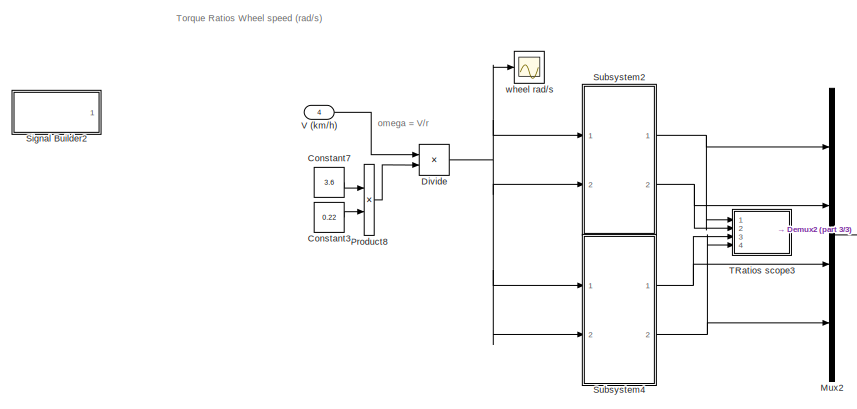
[diagram: root canvas - part 1/3, top left region]
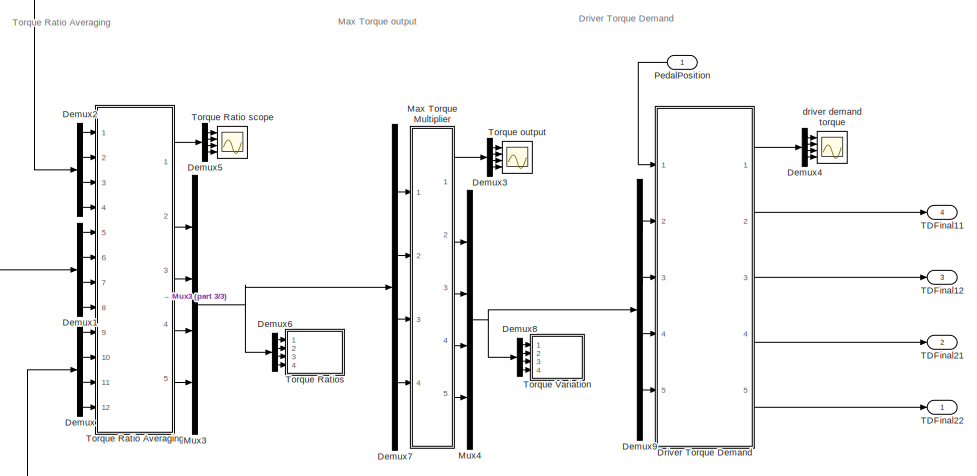
[diagram: root canvas - part 2/3, middle right region]
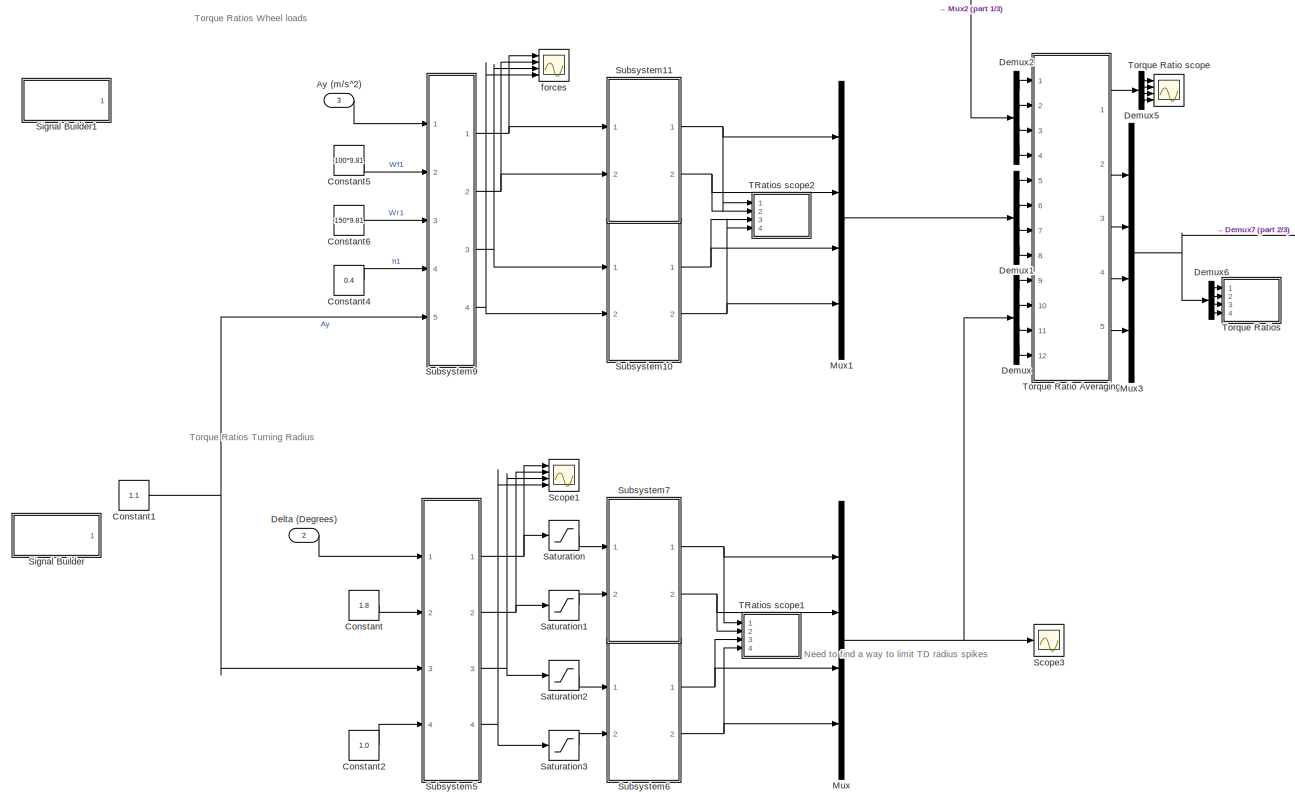
[diagram: root canvas - part 3/3, bottom center region]
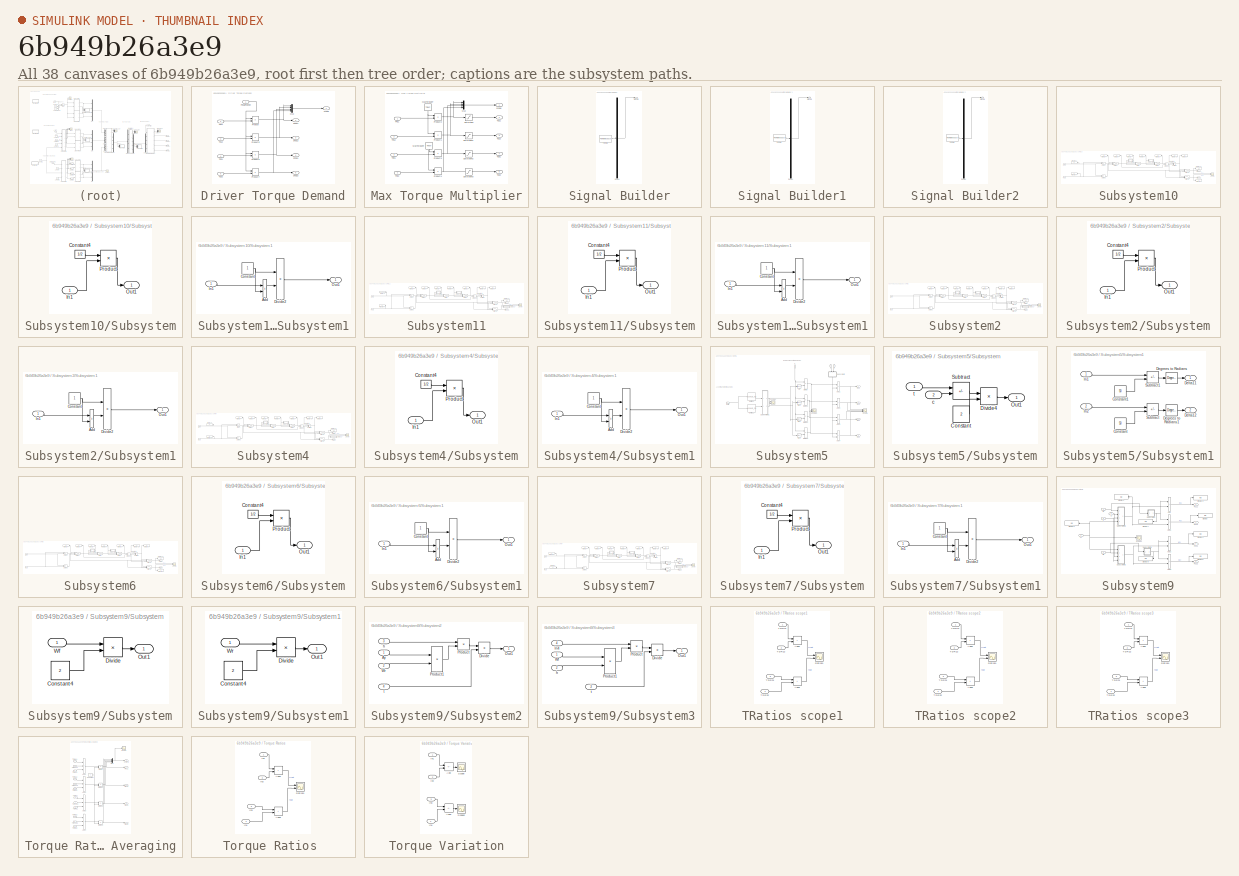
[diagram: thumbnail index - all 38 canvases of the model, root first then tree order]
MODEL slx_6b949b26a3e9
KIND model
CONFIG AbsTol = auto
CONFIG EnableMultiTasking = off
CONFIG FixedStep = 0.01
CONFIG MaxStep = auto
CONFIG MinStep = auto
CONFIG RelTol = 1e-3
CONFIG SampleTimeConstraint = Unconstrained
CONFIG SolverName = FixedStepAuto
CONFIG StartTime = 0.0
CONFIG StopTime = 40
BLOCK [Inport] Ay (m//s^2)
  Port = 3
BLOCK [Constant] Constant
  Value = 1.8
BLOCK [Constant] Constant1
  Value = 1.1
BLOCK [Constant] Constant2
  Value = 1.0
BLOCK [Constant] Constant3
  Value = 0.22
BLOCK [Constant] Constant4
  Value = 0.4
BLOCK [Constant] Constant5
  Value = 100*9.81
BLOCK [Constant] Constant6
  Value = 150*9.81
BLOCK [Constant] Constant7
  Value = 3.6
BLOCK [Inport] Delta (Degrees)
  Port = 2
BLOCK [Demux] Demux
  Ports = [1, 4]
BLOCK [Demux] Demux1
  Ports = [1, 4]
BLOCK [Demux] Demux2
  Ports = [1, 4]
BLOCK [Demux] Demux3
  Ports = [1, 4]
BLOCK [Demux] Demux4
  Ports = [1, 4]
BLOCK [Demux] Demux5
  Ports = [1, 4]
BLOCK [Demux] Demux6
  Ports = [1, 4]
BLOCK [Demux] Demux7
  Ports = [1, 4]
BLOCK [Demux] Demux8
  Ports = [1, 4]
BLOCK [Demux] Demux9
  Ports = [1, 4]
BLOCK [Product] Divide
  Inputs = */
  Ports = [2, 1]
BLOCK [SubSystem] Driver Torque Demand
  Ports = [5, 5]
  RequestExecContextInheritance = off
BLOCK [Outport] Driver Torque Demand/DTD11
  Port = 2
BLOCK [Outport] Driver Torque Demand/DTD12
  Port = 3
BLOCK [Outport] Driver Torque Demand/DTD21
  Port = 4
BLOCK [Outport] Driver Torque Demand/DTD22
  Port = 5
BLOCK [Mux] Driver Torque Demand/Mux
  DisplayOption = bar
  Ports = [4, 1]
BLOCK [Inport] Driver Torque Demand/PedalPosition
BLOCK [Product] Driver Torque Demand/Product
  Ports = [2, 1]
BLOCK [Product] Driver Torque Demand/Product5
  Ports = [2, 1]
BLOCK [Product] Driver Torque Demand/Product6
  Ports = [2, 1]
BLOCK [Product] Driver Torque Demand/Product7
  Ports = [2, 1]
BLOCK [Inport] Driver Torque Demand/TD11
  Port = 2
BLOCK [Inport] Driver Torque Demand/TD12
  Port = 3
BLOCK [Inport] Driver Torque Demand/TD21
  Port = 4
BLOCK [Inport] Driver Torque Demand/TD22
  Port = 5
BLOCK [Outport] Driver Torque Demand/scope
BLOCK [SubSystem] Max Torque Multiplier
  Ports = [4, 5]
  RequestExecContextInheritance = off
BLOCK [Constant] Max Torque Multiplier/MaxTorqueF
  NameLocation = top
  Value = Tmaxf
BLOCK [Constant] Max Torque Multiplier/MaxTorqueR
  NameLocation = top
  Value = Tmaxr
BLOCK [Mux] Max Torque Multiplier/Mux
  DisplayOption = bar
  Ports = [4, 1]
BLOCK [Product] Max Torque Multiplier/Product1
  Ports = [2, 1]
BLOCK [Product] Max Torque Multiplier/Product2
  Ports = [2, 1]
BLOCK [Product] Max Torque Multiplier/Product3
  Ports = [2, 1]
BLOCK [Product] Max Torque Multiplier/Product4
  Ports = [2, 1]
BLOCK [Saturate] Max Torque Multiplier/Saturation
  LowerLimit = -250
  UpperLimit = 250
BLOCK [Saturate] Max Torque Multiplier/Saturation1
  LowerLimit = -250
  UpperLimit = 250
BLOCK [Saturate] Max Torque Multiplier/Saturation2
  LowerLimit = -250
  UpperLimit = 250
BLOCK [Saturate] Max Torque Multiplier/Saturation3
  LowerLimit = -250
  UpperLimit = 250
BLOCK [Outport] Max Torque Multiplier/TD11
  Port = 2
BLOCK [Outport] Max Torque Multiplier/TD12
  Port = 3
BLOCK [Outport] Max Torque Multiplier/TD21
  Port = 4
BLOCK [Outport] Max Torque Multiplier/TD22
  Port = 5
BLOCK [Inport] Max Torque Multiplier/TR11
BLOCK [Inport] Max Torque Multiplier/TR12
  Port = 2
BLOCK [Inport] Max Torque Multiplier/TR21
  Port = 3
BLOCK [Inport] Max Torque Multiplier/TR22
  Port = 4
BLOCK [Outport] Max Torque Multiplier/scope
BLOCK [Mux] Mux
  DisplayOption = bar
  Ports = [4, 1]
BLOCK [Mux] Mux1
  DisplayOption = bar
  Ports = [4, 1]
BLOCK [Mux] Mux2
  DisplayOption = bar
  Ports = [4, 1]
BLOCK [Mux] Mux3
  DisplayOption = bar
  Ports = [4, 1]
BLOCK [Mux] Mux4
  DisplayOption = bar
  Ports = [4, 1]
BLOCK [Inport] PedalPosition
  NameLocation = top
BLOCK [Product] Product8
  Ports = [2, 1]
BLOCK [Saturate] Saturation
  LowerLimit = -100
  UpperLimit = 100
BLOCK [Saturate] Saturation1
  LowerLimit = -100
  UpperLimit = 100
BLOCK [Saturate] Saturation2
  LowerLimit = -100
  UpperLimit = 100
BLOCK [Saturate] Saturation3
  LowerLimit = -100
  UpperLimit = 100
BLOCK [Scope] Scope1
  Floating = off
  NumInputPorts = 4
  Ports = [4]
  ScopeSpecificationString = Simulink.scopes.TimeScopeBlockCfg('CurrentConfiguration', extmgr.ConfigurationSet(extmgr.Configuration('Core','General UI',true),extmgr.Configuration('Core','Source UI',true),extmgr.Configuration('Sources','WiredSimulink',true,'DataLoggingVariableName','ScopeData2'),extmgr.Configuration('Visuals','Time Domain',true,'SerializedDisplays',{struct('MinYLimReal','-5014.57253','MaxYLimReal','10993.50894...<+3605ch>
BLOCK [Scope] Scope3
  Floating = off
  NumInputPorts = 1
  Ports = [1]
  ScopeSpecificationString = Simulink.scopes.TimeScopeBlockCfg('CurrentConfiguration', extmgr.ConfigurationSet(extmgr.Configuration('Core','General UI',true),extmgr.Configuration('Core','Source UI',true),extmgr.Configuration('Sources','WiredSimulink',true,'DataLoggingVariableName','ScopeData11'),extmgr.Configuration('Visuals','Time Domain',true,'SerializedDisplays',{struct('MinYLimReal','0.45778','MaxYLimReal','0.54222','YLab...<+1481ch>
BLOCK [SubSystem] Signal Builder
  ClipboardFcn = sigbuilder_block('clipboard');
  CloseFcn = sigbuilder_block('close');
  ContinueFcn = sigbuilder_block('continue');
  CopyFcn = sigbuilder_block('copy');
  DeleteFcn = sigbuilder_block('delete');
  LoadFcn = sigbuilder_block('load');
  MaskHideContents = on
  ModelCloseFcn = sigbuilder_block('modelClose');
  NameChangeFcn = sigbuilder_block('namechange');
  OpenFcn = sigbuilder_block('open',[143 201 550 400 ]);
  PauseFcn = sigbuilder_block('pause');
  Ports = [0, 1]
  PreSaveFcn = sigbuilder_block('preSave');
  RequestExecContextInheritance = off
  StartFcn = sigbuilder_block('start');
  StopFcn = sigbuilder_block('stop');
  Tag = STV Subsys
BLOCK [Demux] Signal Builder/Demux
  DisplayOption = none
  Outputs = 1
  Ports = [1, 1]
  Tag = STV Demux
BLOCK [FromWorkspace] Signal Builder/FromWs
  Tag = STV FromWs
  VariableName = tuvar
BLOCK [Outport] Signal Builder/Signal 2
  Tag = STV Outport
BLOCK [SubSystem] Signal Builder1
  ClipboardFcn = sigbuilder_block('clipboard');
  CloseFcn = sigbuilder_block('close');
  ContinueFcn = sigbuilder_block('continue');
  CopyFcn = sigbuilder_block('copy');
  DeleteFcn = sigbuilder_block('delete');
  LoadFcn = sigbuilder_block('load');
  MaskHideContents = on
  ModelCloseFcn = sigbuilder_block('modelClose');
  NameChangeFcn = sigbuilder_block('namechange');
  OpenFcn = sigbuilder_block('open',[437.6 199.2 550.4 400 ]);
  PauseFcn = sigbuilder_block('pause');
  Ports = [0, 1]
  PreSaveFcn = sigbuilder_block('preSave');
  RequestExecContextInheritance = off
  StartFcn = sigbuilder_block('start');
  StopFcn = sigbuilder_block('stop');
  Tag = STV Subsys
BLOCK [Demux] Signal Builder1/Demux
  DisplayOption = none
  Outputs = 1
  Ports = [1, 1]
  Tag = STV Demux
BLOCK [FromWorkspace] Signal Builder1/FromWs
  Tag = STV FromWs
  VariableName = tuvar
BLOCK [Outport] Signal Builder1/Signal 2
  Tag = STV Outport
BLOCK [SubSystem] Signal Builder2
  ClipboardFcn = sigbuilder_block('clipboard');
  CloseFcn = sigbuilder_block('close');
  ContinueFcn = sigbuilder_block('continue');
  CopyFcn = sigbuilder_block('copy');
  DeleteFcn = sigbuilder_block('delete');
  LoadFcn = sigbuilder_block('load');
  MaskHideContents = on
  ModelCloseFcn = sigbuilder_block('modelClose');
  NameChangeFcn = sigbuilder_block('namechange');
  OpenFcn = sigbuilder_block('open',[437.6 199.2 550.4 400 ]);
  PauseFcn = sigbuilder_block('pause');
  Ports = [0, 1]
  PreSaveFcn = sigbuilder_block('preSave');
  RequestExecContextInheritance = off
  StartFcn = sigbuilder_block('start');
  StopFcn = sigbuilder_block('stop');
  Tag = STV Subsys
BLOCK [Demux] Signal Builder2/Demux
  DisplayOption = none
  Outputs = 1
  Ports = [1, 1]
  Tag = STV Demux
BLOCK [FromWorkspace] Signal Builder2/FromWs
  Tag = STV FromWs
  VariableName = tuvar
BLOCK [Outport] Signal Builder2/Signal 1
  Tag = STV Outport
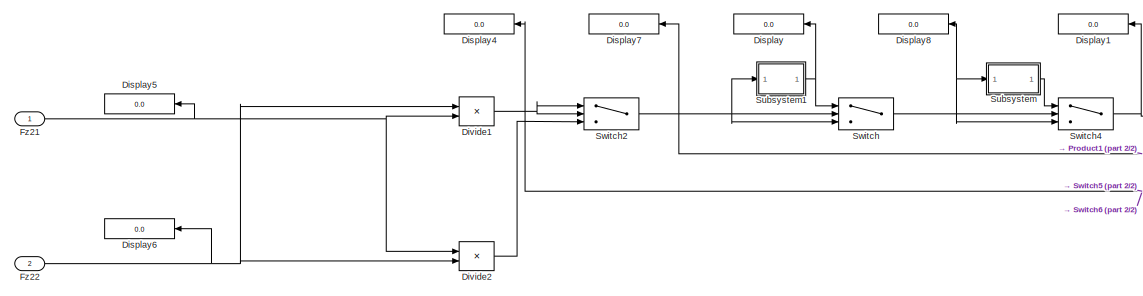
[diagram: Subsystem10 - part 1/2, left side, full height]
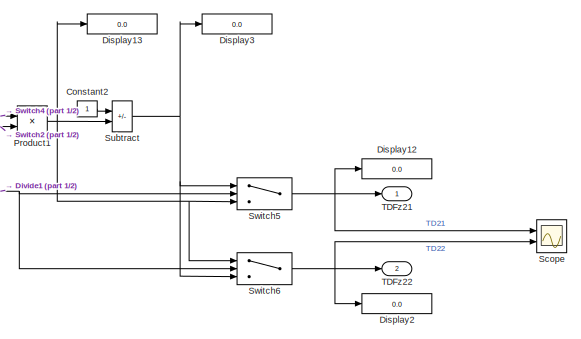
[diagram: Subsystem10 - part 2/2, right side, full height]
BLOCK [SubSystem] Subsystem10
  Ports = [2, 2]
  RequestExecContextInheritance = off
BLOCK [Constant] Subsystem10/Constant2
  NameLocation = left
BLOCK [Display] Subsystem10/Display
  Decimation = 1
  NameLocation = top
  Ports = [1]
BLOCK [Display] Subsystem10/Display1
  Decimation = 1
  NameLocation = top
  Ports = [1]
BLOCK [Display] Subsystem10/Display12
  Decimation = 1
  Ports = [1]
BLOCK [Display] Subsystem10/Display13
  Decimation = 1
  Ports = [1]
BLOCK [Display] Subsystem10/Display2
  Decimation = 1
  Ports = [1]
BLOCK [Display] Subsystem10/Display3
  Decimation = 1
  Ports = [1]
BLOCK [Display] Subsystem10/Display4
  Decimation = 1
  NameLocation = top
  Ports = [1]
BLOCK [Display] Subsystem10/Display5
  Decimation = 1
  NameLocation = top
  Ports = [1]
BLOCK [Display] Subsystem10/Display6
  Decimation = 1
  NameLocation = top
  Ports = [1]
BLOCK [Display] Subsystem10/Display7
  Decimation = 1
  NameLocation = top
  Ports = [1]
BLOCK [Display] Subsystem10/Display8
  Decimation = 1
  NameLocation = top
  Ports = [1]
BLOCK [Product] Subsystem10/Divide1
  Inputs = */
  NameLocation = top
  Ports = [2, 1]
BLOCK [Product] Subsystem10/Divide2
  Inputs = */
  NameLocation = top
  Ports = [2, 1]
BLOCK [Inport] Subsystem10/Fz21
BLOCK [Inport] Subsystem10/Fz22
  Port = 2
BLOCK [Product] Subsystem10/Product1
  Ports = [2, 1]
BLOCK [Scope] Subsystem10/Scope
  Floating = off
  NumInputPorts = 2
  Ports = [2]
  ScopeSpecificationString = Simulink.scopes.TimeScopeBlockCfg('CurrentConfiguration', extmgr.ConfigurationSet(extmgr.Configuration('Core','General UI',true),extmgr.Configuration('Core','Source UI',true),extmgr.Configuration('Sources','WiredSimulink',true),extmgr.Configuration('Visuals','Time Domain',true,'SerializedDisplays',{struct('MinYLimReal','-0.05147','MaxYLimReal','1.05147','YLabelReal','','MinYLimMag','0.00000','MaxY...<+1612ch>
BLOCK [SubSystem] Subsystem10/Subsystem
  Ports = [1, 1]
  RequestExecContextInheritance = off
BLOCK [Constant] Subsystem10/Subsystem/Constant4
  Value = 1/2
BLOCK [Inport] Subsystem10/Subsystem/In1
BLOCK [Outport] Subsystem10/Subsystem/Out1
BLOCK [Product] Subsystem10/Subsystem/Product
  Ports = [2, 1]
BLOCK [SubSystem] Subsystem10/Subsystem1
  Ports = [1, 1]
  RequestExecContextInheritance = off
BLOCK [Sum] Subsystem10/Subsystem1/Add
  IconShape = rectangular
  Ports = [2, 1]
BLOCK [Constant] Subsystem10/Subsystem1/Constant
BLOCK [Product] Subsystem10/Subsystem1/Divide2
  Inputs = */
  Ports = [2, 1]
BLOCK [Inport] Subsystem10/Subsystem1/In1
BLOCK [Outport] Subsystem10/Subsystem1/Out1
BLOCK [Sum] Subsystem10/Subtract
  IconShape = rectangular
  Inputs = +-
  Ports = [2, 1]
BLOCK [Switch] Subsystem10/Switch
  InputSameDT = off
  SaturateOnIntegerOverflow = off
  Threshold = 1
BLOCK [Switch] Subsystem10/Switch2
  InputSameDT = off
  SaturateOnIntegerOverflow = off
  Threshold = 1
BLOCK [Switch] Subsystem10/Switch4
  InputSameDT = off
  SaturateOnIntegerOverflow = off
  Threshold = 1
BLOCK [Switch] Subsystem10/Switch5
  Criteria = u2 > Threshold
  InputSameDT = off
  SaturateOnIntegerOverflow = off
  Threshold = 1
BLOCK [Switch] Subsystem10/Switch6
  Criteria = u2 > Threshold
  InputSameDT = off
  SaturateOnIntegerOverflow = off
  Threshold = 1
BLOCK [Outport] Subsystem10/TDFz21
BLOCK [Outport] Subsystem10/TDFz22
  Port = 2
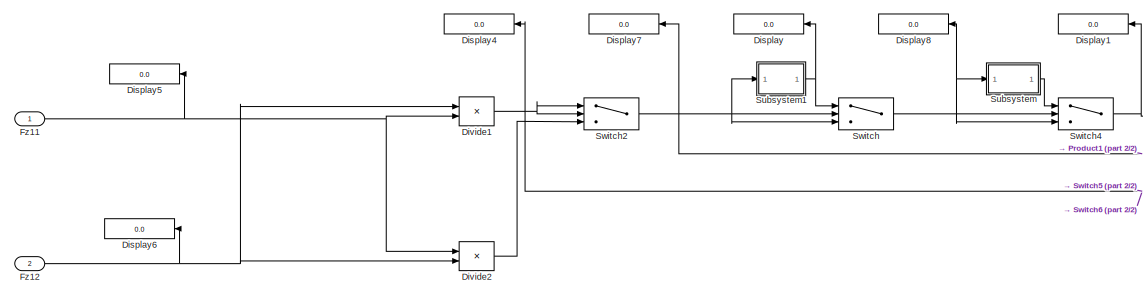
[diagram: Subsystem11 - part 1/2, left side, full height]
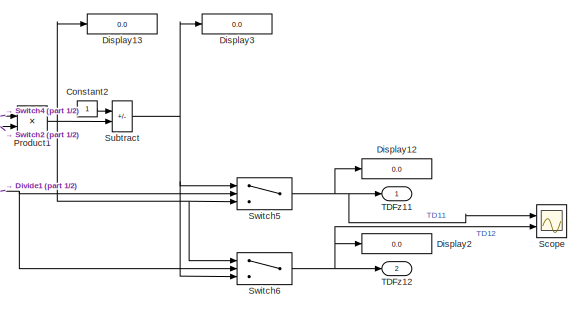
[diagram: Subsystem11 - part 2/2, right side, full height]
BLOCK [SubSystem] Subsystem11
  Ports = [2, 2]
  RequestExecContextInheritance = off
BLOCK [Constant] Subsystem11/Constant2
  NameLocation = left
BLOCK [Display] Subsystem11/Display
  Decimation = 1
  NameLocation = top
  Ports = [1]
BLOCK [Display] Subsystem11/Display1
  Decimation = 1
  NameLocation = top
  Ports = [1]
BLOCK [Display] Subsystem11/Display12
  Decimation = 1
  Ports = [1]
BLOCK [Display] Subsystem11/Display13
  Decimation = 1
  Ports = [1]
BLOCK [Display] Subsystem11/Display2
  Decimation = 1
  Ports = [1]
BLOCK [Display] Subsystem11/Display3
  Decimation = 1
  Ports = [1]
BLOCK [Display] Subsystem11/Display4
  Decimation = 1
  NameLocation = top
  Ports = [1]
BLOCK [Display] Subsystem11/Display5
  Decimation = 1
  NameLocation = top
  Ports = [1]
BLOCK [Display] Subsystem11/Display6
  Decimation = 1
  NameLocation = top
  Ports = [1]
BLOCK [Display] Subsystem11/Display7
  Decimation = 1
  NameLocation = top
  Ports = [1]
BLOCK [Display] Subsystem11/Display8
  Decimation = 1
  NameLocation = top
  Ports = [1]
BLOCK [Product] Subsystem11/Divide1
  Inputs = */
  NameLocation = top
  Ports = [2, 1]
BLOCK [Product] Subsystem11/Divide2
  Inputs = */
  NameLocation = top
  Ports = [2, 1]
BLOCK [Inport] Subsystem11/Fz11
BLOCK [Inport] Subsystem11/Fz12
  Port = 2
BLOCK [Product] Subsystem11/Product1
  Ports = [2, 1]
BLOCK [Scope] Subsystem11/Scope
  Floating = off
  NumInputPorts = 2
  Ports = [2]
  ScopeSpecificationString = Simulink.scopes.TimeScopeBlockCfg('CurrentConfiguration', extmgr.ConfigurationSet(extmgr.Configuration('Core','General UI',true),extmgr.Configuration('Core','Source UI',true),extmgr.Configuration('Sources','WiredSimulink',true),extmgr.Configuration('Visuals','Time Domain',true,'SerializedDisplays',{struct('MinYLimReal','-0.0045','MaxYLimReal','1.0045','YLabelReal','','MinYLimMag','0.00000','MaxYLi...<+1606ch>
BLOCK [SubSystem] Subsystem11/Subsystem
  Ports = [1, 1]
  RequestExecContextInheritance = off
BLOCK [Constant] Subsystem11/Subsystem/Constant4
  Value = 1/2
BLOCK [Inport] Subsystem11/Subsystem/In1
BLOCK [Outport] Subsystem11/Subsystem/Out1
BLOCK [Product] Subsystem11/Subsystem/Product
  Ports = [2, 1]
BLOCK [SubSystem] Subsystem11/Subsystem1
  Ports = [1, 1]
  RequestExecContextInheritance = off
BLOCK [Sum] Subsystem11/Subsystem1/Add
  IconShape = rectangular
  Ports = [2, 1]
BLOCK [Constant] Subsystem11/Subsystem1/Constant
BLOCK [Product] Subsystem11/Subsystem1/Divide2
  Inputs = */
  Ports = [2, 1]
BLOCK [Inport] Subsystem11/Subsystem1/In1
BLOCK [Outport] Subsystem11/Subsystem1/Out1
BLOCK [Sum] Subsystem11/Subtract
  IconShape = rectangular
  Inputs = +-
  Ports = [2, 1]
BLOCK [Switch] Subsystem11/Switch
  InputSameDT = off
  SaturateOnIntegerOverflow = off
  Threshold = 1
BLOCK [Switch] Subsystem11/Switch2
  InputSameDT = off
  SaturateOnIntegerOverflow = off
  Threshold = 1
BLOCK [Switch] Subsystem11/Switch4
  InputSameDT = off
  SaturateOnIntegerOverflow = off
  Threshold = 1
BLOCK [Switch] Subsystem11/Switch5
  Criteria = u2 > Threshold
  InputSameDT = off
  SaturateOnIntegerOverflow = off
  Threshold = 1
BLOCK [Switch] Subsystem11/Switch6
  Criteria = u2 > Threshold
  InputSameDT = off
  SaturateOnIntegerOverflow = off
  Threshold = 1
BLOCK [Outport] Subsystem11/TDFz11
BLOCK [Outport] Subsystem11/TDFz12
  Port = 2
BLOCK [SubSystem] Subsystem2
  Ports = [2, 2]
  RequestExecContextInheritance = off
BLOCK [Constant] Subsystem2/Constant2
  NameLocation = left
BLOCK [Display] Subsystem2/Display
  Decimation = 1
  NameLocation = top
  Ports = [1]
BLOCK [Display] Subsystem2/Display1
  Decimation = 1
  NameLocation = top
  Ports = [1]
BLOCK [Display] Subsystem2/Display12
  Decimation = 1
  Ports = [1]
BLOCK [Display] Subsystem2/Display13
  Decimation = 1
  Ports = [1]
BLOCK [Display] Subsystem2/Display2
  Decimation = 1
  Ports = [1]
BLOCK [Display] Subsystem2/Display3
  Decimation = 1
  Ports = [1]
BLOCK [Display] Subsystem2/Display4
  Decimation = 1
  NameLocation = top
  Ports = [1]
BLOCK [Display] Subsystem2/Display7
  Decimation = 1
  NameLocation = top
  Ports = [1]
BLOCK [Display] Subsystem2/Display8
  Decimation = 1
  NameLocation = top
  Ports = [1]
BLOCK [Product] Subsystem2/Divide1
  Inputs = */
  NameLocation = top
  Ports = [2, 1]
BLOCK [Product] Subsystem2/Divide2
  Inputs = */
  NameLocation = top
  Ports = [2, 1]
BLOCK [Product] Subsystem2/Product1
  Ports = [2, 1]
BLOCK [Scope] Subsystem2/Scope
  Floating = off
  NumInputPorts = 2
  Ports = [2]
  ScopeSpecificationString = Simulink.scopes.TimeScopeBlockCfg('CurrentConfiguration', extmgr.ConfigurationSet(extmgr.Configuration('Core','General UI',true),extmgr.Configuration('Core','Source UI',true),extmgr.Configuration('Sources','WiredSimulink',true),extmgr.Configuration('Visuals','Time Domain',true,'SerializedDisplays',{struct('MinYLimReal','0.4','MaxYLimReal','0.6','YLabelReal','','MinYLimMag','0.4','MaxYLimMag','0.6'...<+2240ch>
BLOCK [SubSystem] Subsystem2/Subsystem
  Ports = [1, 1]
  RequestExecContextInheritance = off
BLOCK [Constant] Subsystem2/Subsystem/Constant4
  Value = 1/2
BLOCK [Inport] Subsystem2/Subsystem/In1
BLOCK [Outport] Subsystem2/Subsystem/Out1
BLOCK [Product] Subsystem2/Subsystem/Product
  Ports = [2, 1]
BLOCK [SubSystem] Subsystem2/Subsystem1
  Ports = [1, 1]
  RequestExecContextInheritance = off
BLOCK [Sum] Subsystem2/Subsystem1/Add
  IconShape = rectangular
  Ports = [2, 1]
BLOCK [Constant] Subsystem2/Subsystem1/Constant
BLOCK [Product] Subsystem2/Subsystem1/Divide2
  Inputs = */
  Ports = [2, 1]
BLOCK [Inport] Subsystem2/Subsystem1/In1
BLOCK [Outport] Subsystem2/Subsystem1/Out1
BLOCK [Sum] Subsystem2/Subtract
  IconShape = rectangular
  Inputs = +-
  Ports = [2, 1]
BLOCK [Switch] Subsystem2/Switch
  InputSameDT = off
  SaturateOnIntegerOverflow = off
  Threshold = 1
BLOCK [Switch] Subsystem2/Switch2
  InputSameDT = off
  SaturateOnIntegerOverflow = off
  Threshold = 1
BLOCK [Switch] Subsystem2/Switch4
  InputSameDT = off
  SaturateOnIntegerOverflow = off
  Threshold = 1
BLOCK [Switch] Subsystem2/Switch5
  Criteria = u2 > Threshold
  InputSameDT = off
  SaturateOnIntegerOverflow = off
  Threshold = 1
BLOCK [Switch] Subsystem2/Switch6
  Criteria = u2 > Threshold
  InputSameDT = off
  SaturateOnIntegerOverflow = off
  Threshold = 1
BLOCK [Outport] Subsystem2/TDw11
BLOCK [Outport] Subsystem2/TDw12
  Port = 2
BLOCK [Inport] Subsystem2/w11
BLOCK [Inport] Subsystem2/w12
  Port = 2
BLOCK [SubSystem] Subsystem4
  Ports = [2, 2]
  RequestExecContextInheritance = off
BLOCK [Constant] Subsystem4/Constant2
  NameLocation = left
BLOCK [Display] Subsystem4/Display
  Decimation = 1
  NameLocation = top
  Ports = [1]
BLOCK [Display] Subsystem4/Display1
  Decimation = 1
  NameLocation = top
  Ports = [1]
BLOCK [Display] Subsystem4/Display12
  Decimation = 1
  Ports = [1]
BLOCK [Display] Subsystem4/Display13
  Decimation = 1
  Ports = [1]
BLOCK [Display] Subsystem4/Display2
  Decimation = 1
  Ports = [1]
BLOCK [Display] Subsystem4/Display3
  Decimation = 1
  Ports = [1]
BLOCK [Display] Subsystem4/Display4
  Decimation = 1
  NameLocation = top
  Ports = [1]
BLOCK [Display] Subsystem4/Display5
  Decimation = 1
  NameLocation = top
  Ports = [1]
BLOCK [Display] Subsystem4/Display6
  Decimation = 1
  NameLocation = top
  Ports = [1]
BLOCK [Display] Subsystem4/Display7
  Decimation = 1
  NameLocation = top
  Ports = [1]
BLOCK [Display] Subsystem4/Display8
  Decimation = 1
  NameLocation = top
  Ports = [1]
BLOCK [Product] Subsystem4/Divide
  Inputs = */
  Ports = [2, 1]
BLOCK [Product] Subsystem4/Divide2
  Inputs = */
  NameLocation = top
  Ports = [2, 1]
BLOCK [Product] Subsystem4/Product1
  Ports = [2, 1]
BLOCK [Scope] Subsystem4/Scope
  Floating = off
  NumInputPorts = 2
  Ports = [2]
  ScopeSpecificationString = Simulink.scopes.TimeScopeBlockCfg('CurrentConfiguration', extmgr.ConfigurationSet(extmgr.Configuration('Core','General UI',true),extmgr.Configuration('Core','Source UI',true),extmgr.Configuration('Sources','WiredSimulink',true),extmgr.Configuration('Visuals','Time Domain',true,'SerializedDisplays',{struct('MinYLimReal','0.4','MaxYLimReal','0.6','YLabelReal','','MinYLimMag','0.4','MaxYLimMag','0.6'...<+2213ch>
BLOCK [SubSystem] Subsystem4/Subsystem
  Ports = [1, 1]
  RequestExecContextInheritance = off
BLOCK [Constant] Subsystem4/Subsystem/Constant4
  Value = 1/2
BLOCK [Inport] Subsystem4/Subsystem/In1
BLOCK [Outport] Subsystem4/Subsystem/Out1
BLOCK [Product] Subsystem4/Subsystem/Product
  Ports = [2, 1]
BLOCK [SubSystem] Subsystem4/Subsystem1
  Ports = [1, 1]
  RequestExecContextInheritance = off
BLOCK [Sum] Subsystem4/Subsystem1/Add
  IconShape = rectangular
  Ports = [2, 1]
BLOCK [Constant] Subsystem4/Subsystem1/Constant
BLOCK [Product] Subsystem4/Subsystem1/Divide2
  Inputs = */
  Ports = [2, 1]
BLOCK [Inport] Subsystem4/Subsystem1/In1
BLOCK [Outport] Subsystem4/Subsystem1/Out1
BLOCK [Sum] Subsystem4/Subtract
  IconShape = rectangular
  Inputs = +-
  Ports = [2, 1]
BLOCK [Switch] Subsystem4/Switch
  InputSameDT = off
  SaturateOnIntegerOverflow = off
  Threshold = 1
BLOCK [Switch] Subsystem4/Switch2
  InputSameDT = off
  SaturateOnIntegerOverflow = off
  Threshold = 1
BLOCK [Switch] Subsystem4/Switch4
  InputSameDT = off
  SaturateOnIntegerOverflow = off
  Threshold = 1
BLOCK [Switch] Subsystem4/Switch5
  Criteria = u2 > Threshold
  InputSameDT = off
  SaturateOnIntegerOverflow = off
  Threshold = 1
BLOCK [Switch] Subsystem4/Switch6
  Criteria = u2 > Threshold
  InputSameDT = off
  SaturateOnIntegerOverflow = off
  Threshold = 1
BLOCK [Outport] Subsystem4/TDw21
BLOCK [Outport] Subsystem4/TDw22
  Port = 2
BLOCK [Inport] Subsystem4/w21
BLOCK [Inport] Subsystem4/w22
  Port = 2
BLOCK [SubSystem] Subsystem5
  Ports = [4, 4]
  RequestExecContextInheritance = off
BLOCK [Sum] Subsystem5/Add1
  IconShape = rectangular
  Inputs = +-
  Ports = [2, 1]
BLOCK [Sum] Subsystem5/Add2
  IconShape = rectangular
  Ports = [2, 1]
BLOCK [Sum] Subsystem5/Add3
  IconShape = rectangular
  Inputs = +-
  Ports = [2, 1]
BLOCK [Sum] Subsystem5/Add4
  IconShape = rectangular
  Ports = [2, 1]
BLOCK [Inport] Subsystem5/Delta
BLOCK [Lookup_n-D] Subsystem5/Delta11
  BreakpointsForDimension1 = DeltaT
  BreakpointsForDimension1DataTypeStr = double
  InputPortMap = u0
  InternalRulePriority = Speed
  NumberOfTableDimensions = 1
  Ports = [1, 1]
  RndMeth = Simplest
  Table = Delta11T
  TableDataTypeStr = double
BLOCK [Lookup_n-D] Subsystem5/Delta12
  BreakpointsForDimension1 = DeltaT
  InputPortMap = u0
  InternalRulePriority = Speed
  NumberOfTableDimensions = 1
  Ports = [1, 1]
  RndMeth = Simplest
  Table = Delta12T
  TableDataTypeStr = Inherit: Inherit from 'Table data'
BLOCK [Product] Subsystem5/Divide
  Inputs = */
  Ports = [2, 1]
BLOCK [Product] Subsystem5/Divide1
  Inputs = */
  Ports = [2, 1]
BLOCK [Product] Subsystem5/Divide2
  Inputs = */
  Ports = [2, 1]
BLOCK [Product] Subsystem5/Divide3
  Inputs = */
  Ports = [2, 1]
BLOCK [Inport] Subsystem5/L
  NameLocation = left
  Port = 2
BLOCK [Outport] Subsystem5/R11
BLOCK [Outport] Subsystem5/R12
  Port = 2
BLOCK [Outport] Subsystem5/R21
  Port = 3
BLOCK [Outport] Subsystem5/R22
  Port = 4
BLOCK [Scope] Subsystem5/Scope
  Floating = off
  NumInputPorts = 4
  Ports = [4]
  ScopeSpecificationString = Simulink.scopes.TimeScopeBlockCfg('CurrentConfiguration', extmgr.ConfigurationSet(extmgr.Configuration('Core','General UI',true),extmgr.Configuration('Core','Source UI',true),extmgr.Configuration('Sources','WiredSimulink',true,'DataLoggingVariableName','ScopeData3'),extmgr.Configuration('Visuals','Time Domain',true,'SerializedDisplays',{struct('MinYLimReal','-5014.57253','MaxYLimReal','10993.50894...<+3493ch>
BLOCK [Scope] Subsystem5/Scope1
  Floating = off
  NumInputPorts = 2
  Ports = [2]
  ScopeSpecificationString = Simulink.scopes.TimeScopeBlockCfg('CurrentConfiguration', extmgr.ConfigurationSet(extmgr.Configuration('Core','General UI',true),extmgr.Configuration('Core','Source UI',true),extmgr.Configuration('Sources','WiredSimulink',true,'DataLoggingVariableName','ScopeData4'),extmgr.Configuration('Visuals','Time Domain',true,'SerializedDisplays',{struct('MinYLimReal','-0.44155','MaxYLimReal','0.47977','YLab...<+1990ch>
BLOCK [Scope] Subsystem5/Scope2
  Floating = off
  NumInputPorts = 4
  Ports = [4]
  ScopeSpecificationString = Simulink.scopes.TimeScopeBlockCfg('CurrentConfiguration', extmgr.ConfigurationSet(extmgr.Configuration('Core','General UI',true),extmgr.Configuration('Core','Source UI',true),extmgr.Configuration('Sources','WiredSimulink',true,'DataLoggingVariableName','ScopeData5'),extmgr.Configuration('Visuals','Time Domain',true,'SerializedDisplays',{struct('MinYLimReal','-5014.52253','MaxYLimReal','10993.55894...<+3464ch>
BLOCK [Trigonometry] Subsystem5/Sin
  Ports = [1, 1]
BLOCK [Trigonometry] Subsystem5/Sin1
  Ports = [1, 1]
BLOCK [Trigonometry] Subsystem5/Sin2
  Operator = tan
  Ports = [1, 1]
BLOCK [Trigonometry] Subsystem5/Sin3
  Operator = tan
  Ports = [1, 1]
BLOCK [SubSystem] Subsystem5/Subsystem
  NameLocation = left
  Ports = [2, 1]
  RequestExecContextInheritance = off
BLOCK [Constant] Subsystem5/Subsystem/Constant
  Value = 2
BLOCK [Product] Subsystem5/Subsystem/Divide4
  Inputs = */
  Ports = [2, 1]
BLOCK [Outport] Subsystem5/Subsystem/Out1
BLOCK [Sum] Subsystem5/Subsystem/Subtract
  IconShape = rectangular
  Inputs = +-
  Ports = [2, 1]
BLOCK [Inport] Subsystem5/Subsystem/c
  Port = 2
BLOCK [Inport] Subsystem5/Subsystem/t
BLOCK [SubSystem] Subsystem5/Subsystem1
  Ports = [2, 2]
  RequestExecContextInheritance = off
BLOCK [Constant] Subsystem5/Subsystem1/Constant
  Value = 50
BLOCK [Constant] Subsystem5/Subsystem1/Constant1
  Value = 50
BLOCK [Reference] Subsystem5/Subsystem1/Degrees to Radians  REF=simulink_extras/Transformations/Degrees to
Radians
  Ports = [1, 1]
  SourceBlock = simulink_extras/Transformations/Degrees to\nRadians
  SourceProductBaseCode = SL
  SourceType = DegreesToRadians
BLOCK [Reference] Subsystem5/Subsystem1/Degrees to Radians1  REF=simulink_extras/Transformations/Degrees to
Radians
  Ports = [1, 1]
  SourceBlock = simulink_extras/Transformations/Degrees to\nRadians
  SourceProductBaseCode = SL
  SourceType = DegreesToRadians
BLOCK [Outport] Subsystem5/Subsystem1/Delta11
BLOCK [Outport] Subsystem5/Subsystem1/Delta12
  Port = 2
BLOCK [Inport] Subsystem5/Subsystem1/In1
BLOCK [Inport] Subsystem5/Subsystem1/In2
  Port = 2
BLOCK [Sum] Subsystem5/Subsystem1/Subtract
  IconShape = rectangular
  Inputs = +-
  Ports = [2, 1]
BLOCK [Sum] Subsystem5/Subsystem1/Subtract1
  IconShape = rectangular
  Inputs = +-
  Ports = [2, 1]
BLOCK [Inport] Subsystem5/c
  NameLocation = left
  Port = 4
BLOCK [Inport] Subsystem5/t
  NameLocation = left
  Port = 3
BLOCK [SubSystem] Subsystem6
  Ports = [2, 2]
  RequestExecContextInheritance = off
BLOCK [Constant] Subsystem6/Constant2
  NameLocation = left
BLOCK [Display] Subsystem6/Display
  Decimation = 1
  NameLocation = top
  Ports = [1]
BLOCK [Display] Subsystem6/Display1
  Decimation = 1
  NameLocation = top
  Ports = [1]
BLOCK [Display] Subsystem6/Display12
  Decimation = 1
  Ports = [1]
BLOCK [Display] Subsystem6/Display13
  Decimation = 1
  Ports = [1]
BLOCK [Display] Subsystem6/Display2
  Decimation = 1
  Ports = [1]
BLOCK [Display] Subsystem6/Display3
  Decimation = 1
  Ports = [1]
BLOCK [Display] Subsystem6/Display4
  Decimation = 1
  NameLocation = top
  Ports = [1]
BLOCK [Display] Subsystem6/Display7
  Decimation = 1
  NameLocation = top
  Ports = [1]
BLOCK [Display] Subsystem6/Display8
  Decimation = 1
  NameLocation = top
  Ports = [1]
BLOCK [Product] Subsystem6/Divide1
  Inputs = */
  NameLocation = top
  Ports = [2, 1]
BLOCK [Product] Subsystem6/Divide2
  Inputs = */
  NameLocation = top
  Ports = [2, 1]
BLOCK [Product] Subsystem6/Product1
  Ports = [2, 1]
BLOCK [Inport] Subsystem6/R21
BLOCK [Inport] Subsystem6/R22
  Port = 2
BLOCK [Scope] Subsystem6/Scope
  Floating = off
  NumInputPorts = 2
  Ports = [2]
  ScopeSpecificationString = Simulink.scopes.TimeScopeBlockCfg('CurrentConfiguration', extmgr.ConfigurationSet(extmgr.Configuration('Core','General UI',true),extmgr.Configuration('Core','Source UI',true),extmgr.Configuration('Sources','WiredSimulink',true),extmgr.Configuration('Visuals','Time Domain',true,'SerializedDisplays',{struct('MinYLimReal','-0.05147','MaxYLimReal','1.05147','YLabelReal','','MinYLimMag','0.00000','MaxY...<+1612ch>
BLOCK [SubSystem] Subsystem6/Subsystem
  Ports = [1, 1]
  RequestExecContextInheritance = off
BLOCK [Constant] Subsystem6/Subsystem/Constant4
  Value = 1/2
BLOCK [Inport] Subsystem6/Subsystem/In1
BLOCK [Outport] Subsystem6/Subsystem/Out1
BLOCK [Product] Subsystem6/Subsystem/Product
  Ports = [2, 1]
BLOCK [SubSystem] Subsystem6/Subsystem1
  Ports = [1, 1]
  RequestExecContextInheritance = off
BLOCK [Sum] Subsystem6/Subsystem1/Add
  IconShape = rectangular
  Ports = [2, 1]
BLOCK [Constant] Subsystem6/Subsystem1/Constant
BLOCK [Product] Subsystem6/Subsystem1/Divide2
  Inputs = */
  Ports = [2, 1]
BLOCK [Inport] Subsystem6/Subsystem1/In1
BLOCK [Outport] Subsystem6/Subsystem1/Out1
BLOCK [Sum] Subsystem6/Subtract
  IconShape = rectangular
  Inputs = +-
  Ports = [2, 1]
BLOCK [Switch] Subsystem6/Switch
  InputSameDT = off
  SaturateOnIntegerOverflow = off
  Threshold = 1
BLOCK [Switch] Subsystem6/Switch2
  InputSameDT = off
  SaturateOnIntegerOverflow = off
  Threshold = 1
BLOCK [Switch] Subsystem6/Switch4
  InputSameDT = off
  SaturateOnIntegerOverflow = off
  Threshold = 1
BLOCK [Switch] Subsystem6/Switch5
  Criteria = u2 > Threshold
  InputSameDT = off
  SaturateOnIntegerOverflow = off
  Threshold = 1
BLOCK [Switch] Subsystem6/Switch6
  Criteria = u2 > Threshold
  InputSameDT = off
  SaturateOnIntegerOverflow = off
  Threshold = 1
BLOCK [Outport] Subsystem6/TDR21
BLOCK [Outport] Subsystem6/TDR22
  Port = 2
BLOCK [SubSystem] Subsystem7
  Ports = [2, 2]
  RequestExecContextInheritance = off
BLOCK [Constant] Subsystem7/Constant2
  NameLocation = left
BLOCK [Display] Subsystem7/Display
  Decimation = 1
  NameLocation = top
  Ports = [1]
BLOCK [Display] Subsystem7/Display1
  Decimation = 1
  NameLocation = top
  Ports = [1]
BLOCK [Display] Subsystem7/Display12
  Decimation = 1
  Ports = [1]
BLOCK [Display] Subsystem7/Display13
  Decimation = 1
  Ports = [1]
BLOCK [Display] Subsystem7/Display2
  Decimation = 1
  Ports = [1]
BLOCK [Display] Subsystem7/Display3
  Decimation = 1
  Ports = [1]
BLOCK [Display] Subsystem7/Display4
  Decimation = 1
  NameLocation = top
  Ports = [1]
BLOCK [Display] Subsystem7/Display5
  Decimation = 1
  NameLocation = top
  Ports = [1]
BLOCK [Display] Subsystem7/Display6
  Decimation = 1
  NameLocation = top
  Ports = [1]
BLOCK [Display] Subsystem7/Display7
  Decimation = 1
  NameLocation = top
  Ports = [1]
BLOCK [Display] Subsystem7/Display8
  Decimation = 1
  NameLocation = top
  Ports = [1]
BLOCK [Product] Subsystem7/Divide1
  Inputs = */
  NameLocation = top
  Ports = [2, 1]
BLOCK [Product] Subsystem7/Divide2
  Inputs = */
  NameLocation = top
  Ports = [2, 1]
BLOCK [Product] Subsystem7/Product1
  Ports = [2, 1]
BLOCK [Inport] Subsystem7/R11
BLOCK [Inport] Subsystem7/R12
  Port = 2
BLOCK [Scope] Subsystem7/Scope
  Floating = off
  NumInputPorts = 2
  Ports = [2]
  ScopeSpecificationString = Simulink.scopes.TimeScopeBlockCfg('CurrentConfiguration', extmgr.ConfigurationSet(extmgr.Configuration('Core','General UI',true),extmgr.Configuration('Core','Source UI',true),extmgr.Configuration('Sources','WiredSimulink',true),extmgr.Configuration('Visuals','Time Domain',true,'SerializedDisplays',{struct('MinYLimReal','0.30418','MaxYLimReal','0.69582','YLabelReal','','MinYLimMag','0.30418','MaxYL...<+1654ch>
BLOCK [SubSystem] Subsystem7/Subsystem
  Ports = [1, 1]
  RequestExecContextInheritance = off
BLOCK [Constant] Subsystem7/Subsystem/Constant4
  Value = 1/2
BLOCK [Inport] Subsystem7/Subsystem/In1
BLOCK [Outport] Subsystem7/Subsystem/Out1
BLOCK [Product] Subsystem7/Subsystem/Product
  Ports = [2, 1]
BLOCK [SubSystem] Subsystem7/Subsystem1
  Ports = [1, 1]
  RequestExecContextInheritance = off
BLOCK [Sum] Subsystem7/Subsystem1/Add
  IconShape = rectangular
  Ports = [2, 1]
BLOCK [Constant] Subsystem7/Subsystem1/Constant
BLOCK [Product] Subsystem7/Subsystem1/Divide2
  Inputs = */
  Ports = [2, 1]
BLOCK [Inport] Subsystem7/Subsystem1/In1
BLOCK [Outport] Subsystem7/Subsystem1/Out1
BLOCK [Sum] Subsystem7/Subtract
  IconShape = rectangular
  Inputs = +-
  Ports = [2, 1]
BLOCK [Switch] Subsystem7/Switch
  InputSameDT = off
  SaturateOnIntegerOverflow = off
  Threshold = 1
BLOCK [Switch] Subsystem7/Switch2
  InputSameDT = off
  SaturateOnIntegerOverflow = off
  Threshold = 1
BLOCK [Switch] Subsystem7/Switch4
  InputSameDT = off
  SaturateOnIntegerOverflow = off
  Threshold = 1
BLOCK [Switch] Subsystem7/Switch5
  Criteria = u2 > Threshold
  InputSameDT = off
  SaturateOnIntegerOverflow = off
  Threshold = 1
BLOCK [Switch] Subsystem7/Switch6
  Criteria = u2 > Threshold
  InputSameDT = off
  SaturateOnIntegerOverflow = off
  Threshold = 1
BLOCK [Outport] Subsystem7/TDR11
BLOCK [Outport] Subsystem7/TDR12
  Port = 2
BLOCK [SubSystem] Subsystem9
  Ports = [5, 4]
  RequestExecContextInheritance = off
BLOCK [Sum] Subsystem9/Add
  IconShape = rectangular
  Ports = [2, 1]
BLOCK [Sum] Subsystem9/Add1
  IconShape = rectangular
  Inputs = +-
  Ports = [2, 1]
BLOCK [Sum] Subsystem9/Add2
  IconShape = rectangular
  Ports = [2, 1]
BLOCK [Sum] Subsystem9/Add3
  IconShape = rectangular
  Inputs = +-
  Ports = [2, 1]
BLOCK [Inport] Subsystem9/Ay
BLOCK [Display] Subsystem9/Display
  Decimation = 1
  Ports = [1]
BLOCK [Display] Subsystem9/Display1
  Decimation = 1
  Ports = [1]
BLOCK [Display] Subsystem9/Display2
  Decimation = 1
  NameLocation = top
  Ports = [1]
BLOCK [Display] Subsystem9/Display3
  Decimation = 1
  Ports = [1]
BLOCK [Display] Subsystem9/Display4
  Decimation = 1
  Ports = [1]
BLOCK [Display] Subsystem9/Display5
  Decimation = 1
  Ports = [1]
BLOCK [Display] Subsystem9/Display7
  Decimation = 1
  Ports = [1]
BLOCK [Display] Subsystem9/Display8
  Decimation = 1
  Ports = [1]
BLOCK [Outport] Subsystem9/Fz11
BLOCK [Outport] Subsystem9/Fz12
  Port = 2
BLOCK [Outport] Subsystem9/Fz21
  Port = 3
BLOCK [Outport] Subsystem9/Fz22
  Port = 4
BLOCK [Scope] Subsystem9/Scope1
  Floating = off
  NumInputPorts = 1
  Ports = [1]
  ScopeSpecificationString = Simulink.scopes.TimeScopeBlockCfg('CurrentConfiguration', extmgr.ConfigurationSet(extmgr.Configuration('Core','General UI',true),extmgr.Configuration('Core','Source UI',true),extmgr.Configuration('Sources','WiredSimulink',true,'DataLoggingVariableName','ScopeData5'),extmgr.Configuration('Visuals','Time Domain',true,'SerializedDisplays',{struct('MinYLimReal','-1.38738','MaxYLimReal','1.38738','YLab...<+1421ch>
BLOCK [SubSystem] Subsystem9/Subsystem
  Ports = [1, 1]
  RequestExecContextInheritance = off
BLOCK [Constant] Subsystem9/Subsystem/Constant4
  Value = 2
BLOCK [Product] Subsystem9/Subsystem/Divide
  Inputs = */
  Ports = [2, 1]
BLOCK [Outport] Subsystem9/Subsystem/Out1
BLOCK [Inport] Subsystem9/Subsystem/Wf
BLOCK [SubSystem] Subsystem9/Subsystem1
  Ports = [1, 1]
  RequestExecContextInheritance = off
BLOCK [Constant] Subsystem9/Subsystem1/Constant4
  Value = 2
BLOCK [Product] Subsystem9/Subsystem1/Divide
  Inputs = */
  Ports = [2, 1]
BLOCK [Outport] Subsystem9/Subsystem1/Out1
BLOCK [Inport] Subsystem9/Subsystem1/Wr
BLOCK [SubSystem] Subsystem9/Subsystem2
  Ports = [4, 1]
  RequestExecContextInheritance = off
BLOCK [Inport] Subsystem9/Subsystem2/Ay
BLOCK [Product] Subsystem9/Subsystem2/Divide
  Inputs = */
  Ports = [2, 1]
BLOCK [Outport] Subsystem9/Subsystem2/Out1
BLOCK [Product] Subsystem9/Subsystem2/Product
  Ports = [2, 1]
BLOCK [Product] Subsystem9/Subsystem2/Product1
  Ports = [2, 1]
BLOCK [Inport] Subsystem9/Subsystem2/Wr
  Port = 2
BLOCK [Inport] Subsystem9/Subsystem2/h
  Port = 3
BLOCK [Inport] Subsystem9/Subsystem2/t
  Port = 4
BLOCK [SubSystem] Subsystem9/Subsystem3
  Ports = [4, 1]
  RequestExecContextInheritance = off
BLOCK [Product] Subsystem9/Subsystem3/Divide
  Inputs = */
  Ports = [2, 1]
BLOCK [Inport] Subsystem9/Subsystem3/In4
  Port = 4
BLOCK [Outport] Subsystem9/Subsystem3/Out1
BLOCK [Product] Subsystem9/Subsystem3/Product
  Ports = [2, 1]
BLOCK [Product] Subsystem9/Subsystem3/Product1
  Ports = [2, 1]
BLOCK [Inport] Subsystem9/Subsystem3/Wf
BLOCK [Inport] Subsystem9/Subsystem3/h
  Port = 2
BLOCK [Inport] Subsystem9/Subsystem3/t
  Port = 3
BLOCK [Inport] Subsystem9/Wf
  Port = 2
BLOCK [Inport] Subsystem9/Wr
  Port = 3
BLOCK [Inport] Subsystem9/h
  Port = 4
BLOCK [Inport] Subsystem9/t
  Port = 5
BLOCK [Outport] TDFinal11
  Port = 4
BLOCK [Outport] TDFinal12
  Port = 3
BLOCK [Outport] TDFinal21
  Port = 2
BLOCK [Outport] TDFinal22
BLOCK [SubSystem] TRatios scope1
  Ports = [4]
  RequestExecContextInheritance = off
BLOCK [Sum] TRatios scope1/Add2
  IconShape = rectangular
  Ports = [2, 1]
BLOCK [Sum] TRatios scope1/Add3
  IconShape = rectangular
  Ports = [2, 1]
BLOCK [Scope] TRatios scope1/Ratios1
  Floating = off
  NumInputPorts = 2
  Ports = [2]
  ScopeSpecificationString = Simulink.scopes.TimeScopeBlockCfg('CurrentConfiguration', extmgr.ConfigurationSet(extmgr.Configuration('Core','General UI',true),extmgr.Configuration('Core','Source UI',true),extmgr.Configuration('Sources','WiredSimulink',true,'DataLoggingVariableName','ScopeData6'),extmgr.Configuration('Visuals','Time Domain',true,'SerializedDisplays',{struct('MinYLimReal','0.9','MaxYLimReal','1.1','YLabelReal','...<+2073ch>  <repeated x4 — deduplicated; at blocks: Ratios1>
BLOCK [Inport] TRatios scope1/TDR11
BLOCK [Inport] TRatios scope1/TDR12
  Port = 2
BLOCK [Inport] TRatios scope1/TDR21
  Port = 3
BLOCK [Inport] TRatios scope1/TDR22
  Port = 4
BLOCK [SubSystem] TRatios scope2
  Ports = [4]
  RequestExecContextInheritance = off
BLOCK [Sum] TRatios scope2/Add2
  IconShape = rectangular
  Ports = [2, 1]
BLOCK [Sum] TRatios scope2/Add3
  IconShape = rectangular
  Ports = [2, 1]
BLOCK [Scope] TRatios scope2/Ratios1
  Floating = off
  NumInputPorts = 2
  Ports = [2]
BLOCK [Inport] TRatios scope2/TDR11
BLOCK [Inport] TRatios scope2/TDR12
  Port = 2
BLOCK [Inport] TRatios scope2/TDR21
  Port = 3
BLOCK [Inport] TRatios scope2/TDR22
  Port = 4
BLOCK [SubSystem] TRatios scope3
  Ports = [4]
  RequestExecContextInheritance = off
BLOCK [Sum] TRatios scope3/Add2
  IconShape = rectangular
  Ports = [2, 1]
BLOCK [Sum] TRatios scope3/Add3
  IconShape = rectangular
  Ports = [2, 1]
BLOCK [Scope] TRatios scope3/Ratios1
  Floating = off
  NumInputPorts = 2
  Ports = [2]
BLOCK [Inport] TRatios scope3/TDR11
BLOCK [Inport] TRatios scope3/TDR12
  Port = 2
BLOCK [Inport] TRatios scope3/TDR21
  Port = 3
BLOCK [Inport] TRatios scope3/TDR22
  Port = 4
BLOCK [SubSystem] Torque Ratio Averaging
  Ports = [12, 5]
  RequestExecContextInheritance = off
BLOCK [Sum] Torque Ratio Averaging/Add1
  IconShape = rectangular
  Inputs = +++
  Ports = [3, 1]
BLOCK [Sum] Torque Ratio Averaging/Add2
  IconShape = rectangular
  Inputs = +++
  Ports = [3, 1]
BLOCK [Sum] Torque Ratio Averaging/Add3
  IconShape = rectangular
  Inputs = +++
  Ports = [3, 1]
BLOCK [Sum] Torque Ratio Averaging/Add4
  IconShape = rectangular
  Inputs = +++
  Ports = [3, 1]
BLOCK [Constant] Torque Ratio Averaging/Constant
  Value = 3
BLOCK [Product] Torque Ratio Averaging/Divide
  Inputs = */
  Ports = [2, 1]
BLOCK [Product] Torque Ratio Averaging/Divide1
  Inputs = */
  Ports = [2, 1]
BLOCK [Product] Torque Ratio Averaging/Divide2
  Inputs = */
  Ports = [2, 1]
BLOCK [Product] Torque Ratio Averaging/Divide3
  Inputs = */
  Ports = [2, 1]
BLOCK [Mux] Torque Ratio Averaging/Mux
  DisplayOption = bar
  Ports = [4, 1]
BLOCK [Scope] Torque Ratio Averaging/Scope
  Floating = off
  NumInputPorts = 1
  Ports = [1]
  ScopeSpecificationString = Simulink.scopes.TimeScopeBlockCfg('CurrentConfiguration', extmgr.ConfigurationSet(extmgr.Configuration('Core','General UI',true),extmgr.Configuration('Core','Source UI',true),extmgr.Configuration('Sources','WiredSimulink',true,'DataLoggingVariableName','ScopeData4'),extmgr.Configuration('Visuals','Time Domain',true,'SerializedDisplays',{struct('MinYLimReal','0.34418','MaxYLimReal','0.65582','YLabe...<+1492ch>
BLOCK [Inport] Torque Ratio Averaging/TDFz11
  Port = 5
BLOCK [Inport] Torque Ratio Averaging/TDFz12
  Port = 6
BLOCK [Inport] Torque Ratio Averaging/TDFz21
  Port = 7
BLOCK [Inport] Torque Ratio Averaging/TDFz22
  Port = 8
BLOCK [Inport] Torque Ratio Averaging/TDR11
  Port = 9
BLOCK [Inport] Torque Ratio Averaging/TDR12
  Port = 10
BLOCK [Inport] Torque Ratio Averaging/TDR21
  Port = 11
BLOCK [Inport] Torque Ratio Averaging/TDR22
  Port = 12
BLOCK [Inport] Torque Ratio Averaging/TDw11
BLOCK [Inport] Torque Ratio Averaging/TDw12
  Port = 2
BLOCK [Inport] Torque Ratio Averaging/TDw21
  Port = 3
BLOCK [Inport] Torque Ratio Averaging/TDw22
  Port = 4
BLOCK [Outport] Torque Ratio Averaging/TR11
  Port = 2
BLOCK [Outport] Torque Ratio Averaging/TR12
  Port = 3
BLOCK [Outport] Torque Ratio Averaging/TR21
  Port = 4
BLOCK [Outport] Torque Ratio Averaging/TR22
  Port = 5
BLOCK [Outport] Torque Ratio Averaging/scope
BLOCK [Scope] Torque Ratio scope
  Floating = off
  NumInputPorts = 4
  Ports = [4]
  ScopeSpecificationString = Simulink.scopes.TimeScopeBlockCfg('CurrentConfiguration', extmgr.ConfigurationSet(extmgr.Configuration('Core','General UI',true),extmgr.Configuration('Core','Source UI',true),extmgr.Configuration('Sources','WiredSimulink',true,'DataLoggingVariableName','ScopeData8'),extmgr.Configuration('Visuals','Time Domain',true,'SerializedDisplays',{struct('MinYLimReal','86.04587','MaxYLimReal','163.94516','YL...<+3856ch>
BLOCK [SubSystem] Torque Ratios 
  Ports = [4]
  RequestExecContextInheritance = off
BLOCK [Sum] Torque Ratios /Add2
  IconShape = rectangular
  Ports = [2, 1]
BLOCK [Sum] Torque Ratios /Add3
  IconShape = rectangular
  Ports = [2, 1]
BLOCK [Inport] Torque Ratios /In1
BLOCK [Inport] Torque Ratios /In2
  Port = 2
BLOCK [Inport] Torque Ratios /In3
  Port = 3
BLOCK [Inport] Torque Ratios /In4
  Port = 4
BLOCK [Scope] Torque Ratios /Ratios1
  Floating = off
  NumInputPorts = 2
  Ports = [2]
BLOCK [SubSystem] Torque Variation
  Ports = [4]
  RequestExecContextInheritance = off
BLOCK [Sum] Torque Variation/Add
  IconShape = rectangular
  Inputs = +-
  Ports = [2, 1]
BLOCK [Sum] Torque Variation/Add1
  IconShape = rectangular
  Inputs = +-
  Ports = [2, 1]
BLOCK [Inport] Torque Variation/In1
BLOCK [Inport] Torque Variation/In2
  Port = 2
BLOCK [Inport] Torque Variation/In3
  Port = 3
BLOCK [Inport] Torque Variation/In4
  Port = 4
BLOCK [Scope] Torque Variation/Scope
  Floating = off
  NumInputPorts = 1
  Ports = [1]
  ScopeSpecificationString = Simulink.scopes.TimeScopeBlockCfg('CurrentConfiguration', extmgr.ConfigurationSet(extmgr.Configuration('Core','General UI',true),extmgr.Configuration('Core','Source UI',true),extmgr.Configuration('Sources','WiredSimulink',true,'DataLoggingVariableName','ScopeData5'),extmgr.Configuration('Visuals','Time Domain',true,'SerializedDisplays',{struct('MinYLimReal','-77.90826','MaxYLimReal','77.89032','YL...<+1398ch>
BLOCK [Scope] Torque Variation/Scope2
  Floating = off
  NumInputPorts = 1
  Ports = [1]
  ScopeSpecificationString = Simulink.scopes.TimeScopeBlockCfg('CurrentConfiguration', extmgr.ConfigurationSet(extmgr.Configuration('Core','General UI',true),extmgr.Configuration('Core','Source UI',true),extmgr.Configuration('Sources','WiredSimulink',true,'DataLoggingVariableName','ScopeData7'),extmgr.Configuration('Visuals','Time Domain',true,'SerializedDisplays',{struct('MinYLimReal','-77.0703','MaxYLimReal','77.04937','YLa...<+1394ch>
BLOCK [Scope] Torque output
  Floating = off
  NumInputPorts = 4
  Ports = [4]
  ScopeSpecificationString = Simulink.scopes.TimeScopeBlockCfg('CurrentConfiguration', extmgr.ConfigurationSet(extmgr.Configuration('Core','General UI',true),extmgr.Configuration('Core','Source UI',true),extmgr.Configuration('Sources','WiredSimulink',true,'DataLoggingVariableName','ScopeData2'),extmgr.Configuration('Visuals','Time Domain',true,'SerializedDisplays',{struct('MinYLimReal','86.04587','MaxYLimReal','163.94516','YL...<+3856ch>
BLOCK [Inport] V (km//h)
  Port = 4
BLOCK [Scope] driver demand torque
  Floating = off
  NumInputPorts = 4
  Ports = [4]
  ScopeSpecificationString = Simulink.scopes.TimeScopeBlockCfg('CurrentConfiguration', extmgr.ConfigurationSet(extmgr.Configuration('Core','General UI',true),extmgr.Configuration('Core','Source UI',true),extmgr.Configuration('Sources','WiredSimulink',true,'DataLoggingVariableName','ScopeData1'),extmgr.Configuration('Visuals','Time Domain',true,'SerializedDisplays',{struct('MinYLimReal','-4.41546','MaxYLimReal','985.41546','YL...<+3823ch>
BLOCK [Scope] forces
  Floating = off
  NumInputPorts = 4
  Ports = [4]
  ScopeSpecificationString = Simulink.scopes.TimeScopeBlockCfg('CurrentConfiguration', extmgr.ConfigurationSet(extmgr.Configuration('Core','General UI',true),extmgr.Configuration('Core','Source UI',true),extmgr.Configuration('Sources','WiredSimulink',true,'DataLoggingVariableName','ScopeData2'),extmgr.Configuration('Visuals','Time Domain',true,'SerializedDisplays',{struct('MinYLimReal','-4.41546','MaxYLimReal','985.41546','YL...<+3904ch>
BLOCK [Scope] wheel rad//s
  Floating = off
  NumInputPorts = 1
  Ports = [1]
  ScopeSpecificationString = Simulink.scopes.TimeScopeBlockCfg('CurrentConfiguration', extmgr.ConfigurationSet(extmgr.Configuration('Core','General UI',true),extmgr.Configuration('Core','Source UI',true),extmgr.Configuration('Sources','WiredSimulink',true,'DataLoggingVariableName','ScopeData3'),extmgr.Configuration('Visuals','Time Domain',true,'SerializedDisplays',{struct('MinYLimReal','-9.4697','MaxYLimReal','85.22727','YLab...<+1457ch>
ANNOTATION (root): Need to find a way to limit TD radius spikes
ANNOTATION (root): Driver Torque Demand
ANNOTATION (root): Max Torque output
ANNOTATION (root): Torque Ratio Averaging
ANNOTATION (root): Torque Ratios Turning Radius
ANNOTATION (root): Torque Ratios Wheel loads
ANNOTATION (root): Torque Ratios Wheel speed (rad/s)
ANNOTATION (root): omega = V/r
ANNOTATION Subsystem5: Ackerman Steering angles
ANNOTATION Subsystem5: Individual wheel turning radius
LINE Ay (m//s^2):1 -> Subsystem9:1
NET Constant1:1 -> Subsystem5:3, Subsystem9:5
LINE Constant2:1 -> Subsystem5:4
LINE Constant3:1 -> Product8:2
LINE Constant4:1 -> Subsystem9:4
LINE Constant5:1 -> Subsystem9:2
LINE Constant6:1 -> Subsystem9:3
LINE Constant7:1 -> Product8:1
LINE Constant:1 -> Subsystem5:2
LINE Delta (Degrees):1 -> Subsystem5:1
LINE Demux1:1 -> Torque Ratio Averaging:5
LINE Demux1:2 -> Torque Ratio Averaging:6
LINE Demux1:3 -> Torque Ratio Averaging:7
LINE Demux1:4 -> Torque Ratio Averaging:8
LINE Demux2:1 -> Torque Ratio Averaging:1
LINE Demux2:2 -> Torque Ratio Averaging:2
LINE Demux2:3 -> Torque Ratio Averaging:3
LINE Demux2:4 -> Torque Ratio Averaging:4
LINE Demux3:1 -> Torque output:1
LINE Demux3:2 -> Torque output:2
LINE Demux3:3 -> Torque output:3
LINE Demux3:4 -> Torque output:4
LINE Demux4:1 -> driver demand torque:1
LINE Demux4:2 -> driver demand torque:2
LINE Demux4:3 -> driver demand torque:3
LINE Demux4:4 -> driver demand torque:4
LINE Demux5:1 -> Torque Ratio scope:1
LINE Demux5:2 -> Torque Ratio scope:2
LINE Demux5:3 -> Torque Ratio scope:3
LINE Demux5:4 -> Torque Ratio scope:4
LINE Demux6:1 -> Torque Ratios :1
LINE Demux6:2 -> Torque Ratios :2
LINE Demux6:3 -> Torque Ratios :3
LINE Demux6:4 -> Torque Ratios :4
LINE Demux7:1 -> Max Torque Multiplier:1
LINE Demux7:2 -> Max Torque Multiplier:2
LINE Demux7:3 -> Max Torque Multiplier:3
LINE Demux7:4 -> Max Torque Multiplier:4
LINE Demux8:1 -> Torque Variation:1
LINE Demux8:2 -> Torque Variation:2
LINE Demux8:3 -> Torque Variation:3
LINE Demux8:4 -> Torque Variation:4
LINE Demux9:1 -> Driver Torque Demand:2
LINE Demux9:2 -> Driver Torque Demand:3
LINE Demux9:3 -> Driver Torque Demand:4
LINE Demux9:4 -> Driver Torque Demand:5
LINE Demux:1 -> Torque Ratio Averaging:9
LINE Demux:2 -> Torque Ratio Averaging:10
LINE Demux:3 -> Torque Ratio Averaging:11
LINE Demux:4 -> Torque Ratio Averaging:12
NET Divide:1 -> Subsystem2:1, Subsystem2:2, Subsystem4:1, Subsystem4:2, wheel rad//s:1
LINE Driver Torque Demand/Mux:1 -> Driver Torque Demand/scope:1
NET Driver Torque Demand/PedalPosition:1 -> Driver Torque Demand/Product5:1, Driver Torque Demand/Product6:1, Driver Torque Demand/Product7:1, Driver Torque Demand/Product:1
NET Driver Torque Demand/Product5:1 -> Driver Torque Demand/DTD12:1, Driver Torque Demand/Mux:2
NET Driver Torque Demand/Product6:1 -> Driver Torque Demand/DTD21:1, Driver Torque Demand/Mux:3
NET Driver Torque Demand/Product7:1 -> Driver Torque Demand/DTD22:1, Driver Torque Demand/Mux:4
NET Driver Torque Demand/Product:1 -> Driver Torque Demand/DTD11:1, Driver Torque Demand/Mux:1
LINE Driver Torque Demand/TD11:1 -> Driver Torque Demand/Product:2
LINE Driver Torque Demand/TD12:1 -> Driver Torque Demand/Product5:2
LINE Driver Torque Demand/TD21:1 -> Driver Torque Demand/Product6:2
LINE Driver Torque Demand/TD22:1 -> Driver Torque Demand/Product7:2
LINE Driver Torque Demand:1 -> Demux4:1
LINE Driver Torque Demand:2 -> TDFinal11:1
LINE Driver Torque Demand:3 -> TDFinal12:1
LINE Driver Torque Demand:4 -> TDFinal21:1
LINE Driver Torque Demand:5 -> TDFinal22:1
NET Max Torque Multiplier/MaxTorqueF:1 -> Max Torque Multiplier/Product1:1, Max Torque Multiplier/Product2:1
NET Max Torque Multiplier/MaxTorqueR:1 -> Max Torque Multiplier/Product3:1, Max Torque Multiplier/Product4:1
LINE Max Torque Multiplier/Mux:1 -> Max Torque Multiplier/scope:1
NET Max Torque Multiplier/Product1:1 -> Max Torque Multiplier/Mux:2, Max Torque Multiplier/Saturation1:1
NET Max Torque Multiplier/Product2:1 -> Max Torque Multiplier/Mux:1, Max Torque Multiplier/Saturation:1
NET Max Torque Multiplier/Product3:1 -> Max Torque Multiplier/Mux:3, Max Torque Multiplier/Saturation2:1
NET Max Torque Multiplier/Product4:1 -> Max Torque Multiplier/Mux:4, Max Torque Multiplier/TD22:1
LINE Max Torque Multiplier/Saturation1:1 -> Max Torque Multiplier/TD12:1
LINE Max Torque Multiplier/Saturation2:1 -> Max Torque Multiplier/TD21:1
LINE Max Torque Multiplier/Saturation:1 -> Max Torque Multiplier/TD11:1
LINE Max Torque Multiplier/TR11:1 -> Max Torque Multiplier/Product2:2
LINE Max Torque Multiplier/TR12:1 -> Max Torque Multiplier/Product1:2
LINE Max Torque Multiplier/TR21:1 -> Max Torque Multiplier/Product3:2
LINE Max Torque Multiplier/TR22:1 -> Max Torque Multiplier/Product4:2
LINE Max Torque Multiplier:1 -> Demux3:1
LINE Max Torque Multiplier:2 -> Mux4:1
LINE Max Torque Multiplier:3 -> Mux4:2
LINE Max Torque Multiplier:4 -> Mux4:3
LINE Max Torque Multiplier:5 -> Mux4:4
LINE Mux1:1 -> Demux1:1
LINE Mux2:1 -> Demux2:1
NET Mux3:1 -> Demux6:1, Demux7:1
NET Mux4:1 -> Demux8:1, Demux9:1
NET Mux:1 -> Demux:1, Scope3:1
LINE PedalPosition:1 -> Driver Torque Demand:1
LINE Product8:1 -> Divide:2
LINE Saturation1:1 -> Subsystem7:2
LINE Saturation2:1 -> Subsystem6:1
LINE Saturation3:1 -> Subsystem6:2
LINE Saturation:1 -> Subsystem7:1
LINE Subsystem10/Constant2:1 -> Subsystem10/Subtract:1
NET Subsystem10/Divide1:1 -> Subsystem10/Display4:1, Subsystem10/Switch2:1, Subsystem10/Switch2:2, Subsystem10/Switch5:2, Subsystem10/Switch6:2
LINE Subsystem10/Divide2:1 -> Subsystem10/Switch2:3
NET Subsystem10/Fz21:1 -> Subsystem10/Display5:1, Subsystem10/Divide1:2, Subsystem10/Divide2:1
NET Subsystem10/Fz22:1 -> Subsystem10/Display6:1, Subsystem10/Divide1:1, Subsystem10/Divide2:2
NET Subsystem10/Product1:1 -> Subsystem10/Display13:1, Subsystem10/Subtract:2, Subsystem10/Switch5:3, Subsystem10/Switch6:1
LINE Subsystem10/Subsystem/Constant4:1 -> Subsystem10/Subsystem/Product:1
LINE Subsystem10/Subsystem/In1:1 -> Subsystem10/Subsystem/Product:2
LINE Subsystem10/Subsystem/Product:1 -> Subsystem10/Subsystem/Out1:1
LINE Subsystem10/Subsystem1/Add:1 -> Subsystem10/Subsystem1/Divide2:2
NET Subsystem10/Subsystem1/Constant:1 -> Subsystem10/Subsystem1/Add:2, Subsystem10/Subsystem1/Divide2:1
LINE Subsystem10/Subsystem1/Divide2:1 -> Subsystem10/Subsystem1/Out1:1
LINE Subsystem10/Subsystem1/In1:1 -> Subsystem10/Subsystem1/Add:1
NET Subsystem10/Subsystem1:1 -> Subsystem10/Display:1, Subsystem10/Switch:1
LINE Subsystem10/Subsystem:1 -> Subsystem10/Switch4:1
NET Subsystem10/Subtract:1 -> Subsystem10/Display3:1, Subsystem10/Switch5:1, Subsystem10/Switch6:3
NET Subsystem10/Switch2:1 -> Subsystem10/Display7:1, Subsystem10/Product1:2, Subsystem10/Subsystem1:1, Subsystem10/Switch:2, Subsystem10/Switch:3
NET Subsystem10/Switch4:1 -> Subsystem10/Display1:1, Subsystem10/Product1:1
NET Subsystem10/Switch5:1 -> Subsystem10/Display12:1, Subsystem10/Scope:1, Subsystem10/TDFz21:1
NET Subsystem10/Switch6:1 -> Subsystem10/Display2:1, Subsystem10/Scope:2, Subsystem10/TDFz22:1
NET Subsystem10/Switch:1 -> Subsystem10/Display8:1, Subsystem10/Subsystem:1, Subsystem10/Switch4:2, Subsystem10/Switch4:3
NET Subsystem10:1 -> Mux1:3, TRatios scope2:3
NET Subsystem10:2 -> Mux1:4, TRatios scope2:4
LINE Subsystem11/Constant2:1 -> Subsystem11/Subtract:1
NET Subsystem11/Divide1:1 -> Subsystem11/Display4:1, Subsystem11/Switch2:1, Subsystem11/Switch2:2, Subsystem11/Switch5:2, Subsystem11/Switch6:2
LINE Subsystem11/Divide2:1 -> Subsystem11/Switch2:3
NET Subsystem11/Fz11:1 -> Subsystem11/Display5:1, Subsystem11/Divide1:2, Subsystem11/Divide2:1
NET Subsystem11/Fz12:1 -> Subsystem11/Display6:1, Subsystem11/Divide1:1, Subsystem11/Divide2:2
NET Subsystem11/Product1:1 -> Subsystem11/Display13:1, Subsystem11/Subtract:2, Subsystem11/Switch5:3, Subsystem11/Switch6:1
LINE Subsystem11/Subsystem/Constant4:1 -> Subsystem11/Subsystem/Product:1
LINE Subsystem11/Subsystem/In1:1 -> Subsystem11/Subsystem/Product:2
LINE Subsystem11/Subsystem/Product:1 -> Subsystem11/Subsystem/Out1:1
LINE Subsystem11/Subsystem1/Add:1 -> Subsystem11/Subsystem1/Divide2:2
NET Subsystem11/Subsystem1/Constant:1 -> Subsystem11/Subsystem1/Add:2, Subsystem11/Subsystem1/Divide2:1
LINE Subsystem11/Subsystem1/Divide2:1 -> Subsystem11/Subsystem1/Out1:1
LINE Subsystem11/Subsystem1/In1:1 -> Subsystem11/Subsystem1/Add:1
NET Subsystem11/Subsystem1:1 -> Subsystem11/Display:1, Subsystem11/Switch:1
LINE Subsystem11/Subsystem:1 -> Subsystem11/Switch4:1
NET Subsystem11/Subtract:1 -> Subsystem11/Display3:1, Subsystem11/Switch5:1, Subsystem11/Switch6:3
NET Subsystem11/Switch2:1 -> Subsystem11/Display7:1, Subsystem11/Product1:2, Subsystem11/Subsystem1:1, Subsystem11/Switch:2, Subsystem11/Switch:3
NET Subsystem11/Switch4:1 -> Subsystem11/Display1:1, Subsystem11/Product1:1
NET Subsystem11/Switch5:1 -> Subsystem11/Display12:1, Subsystem11/Scope:1, Subsystem11/TDFz11:1
NET Subsystem11/Switch6:1 -> Subsystem11/Display2:1, Subsystem11/Scope:2, Subsystem11/TDFz12:1
NET Subsystem11/Switch:1 -> Subsystem11/Display8:1, Subsystem11/Subsystem:1, Subsystem11/Switch4:2, Subsystem11/Switch4:3
NET Subsystem11:1 -> Mux1:1, TRatios scope2:1
NET Subsystem11:2 -> Mux1:2, TRatios scope2:2
LINE Subsystem2/Constant2:1 -> Subsystem2/Subtract:1
NET Subsystem2/Divide1:1 -> Subsystem2/Display4:1, Subsystem2/Switch2:1, Subsystem2/Switch2:2, Subsystem2/Switch5:2, Subsystem2/Switch6:2
LINE Subsystem2/Divide2:1 -> Subsystem2/Switch2:3
NET Subsystem2/Product1:1 -> Subsystem2/Display13:1, Subsystem2/Subtract:2, Subsystem2/Switch5:3, Subsystem2/Switch6:1
LINE Subsystem2/Subsystem/Constant4:1 -> Subsystem2/Subsystem/Product:1
LINE Subsystem2/Subsystem/In1:1 -> Subsystem2/Subsystem/Product:2
LINE Subsystem2/Subsystem/Product:1 -> Subsystem2/Subsystem/Out1:1
LINE Subsystem2/Subsystem1/Add:1 -> Subsystem2/Subsystem1/Divide2:2
NET Subsystem2/Subsystem1/Constant:1 -> Subsystem2/Subsystem1/Add:2, Subsystem2/Subsystem1/Divide2:1
LINE Subsystem2/Subsystem1/Divide2:1 -> Subsystem2/Subsystem1/Out1:1
LINE Subsystem2/Subsystem1/In1:1 -> Subsystem2/Subsystem1/Add:1
NET Subsystem2/Subsystem1:1 -> Subsystem2/Display:1, Subsystem2/Switch:1
LINE Subsystem2/Subsystem:1 -> Subsystem2/Switch4:1
NET Subsystem2/Subtract:1 -> Subsystem2/Display3:1, Subsystem2/Switch5:1, Subsystem2/Switch6:3
NET Subsystem2/Switch2:1 -> Subsystem2/Display7:1, Subsystem2/Product1:2, Subsystem2/Subsystem1:1, Subsystem2/Switch:2, Subsystem2/Switch:3
NET Subsystem2/Switch4:1 -> Subsystem2/Display1:1, Subsystem2/Product1:1
NET Subsystem2/Switch5:1 -> Subsystem2/Display12:1, Subsystem2/Scope:1, Subsystem2/TDw11:1
NET Subsystem2/Switch6:1 -> Subsystem2/Display2:1, Subsystem2/Scope:2, Subsystem2/TDw12:1
NET Subsystem2/Switch:1 -> Subsystem2/Display8:1, Subsystem2/Subsystem:1, Subsystem2/Switch4:2, Subsystem2/Switch4:3
NET Subsystem2/w11:1 -> Subsystem2/Divide1:2, Subsystem2/Divide2:1
NET Subsystem2/w12:1 -> Subsystem2/Divide1:1, Subsystem2/Divide2:2
NET Subsystem2:1 -> Mux2:1, TRatios scope3:1
NET Subsystem2:2 -> Mux2:2, TRatios scope3:2
LINE Subsystem4/Constant2:1 -> Subsystem4/Subtract:1
LINE Subsystem4/Divide2:1 -> Subsystem4/Switch2:3
NET Subsystem4/Divide:1 -> Subsystem4/Display4:1, Subsystem4/Switch2:1, Subsystem4/Switch2:2, Subsystem4/Switch5:2, Subsystem4/Switch6:2
NET Subsystem4/Product1:1 -> Subsystem4/Display13:1, Subsystem4/Subtract:2, Subsystem4/Switch5:3, Subsystem4/Switch6:1
LINE Subsystem4/Subsystem/Constant4:1 -> Subsystem4/Subsystem/Product:1
LINE Subsystem4/Subsystem/In1:1 -> Subsystem4/Subsystem/Product:2
LINE Subsystem4/Subsystem/Product:1 -> Subsystem4/Subsystem/Out1:1
LINE Subsystem4/Subsystem1/Add:1 -> Subsystem4/Subsystem1/Divide2:2
NET Subsystem4/Subsystem1/Constant:1 -> Subsystem4/Subsystem1/Add:2, Subsystem4/Subsystem1/Divide2:1
LINE Subsystem4/Subsystem1/Divide2:1 -> Subsystem4/Subsystem1/Out1:1
LINE Subsystem4/Subsystem1/In1:1 -> Subsystem4/Subsystem1/Add:1
NET Subsystem4/Subsystem1:1 -> Subsystem4/Display:1, Subsystem4/Switch:1
LINE Subsystem4/Subsystem:1 -> Subsystem4/Switch4:1
NET Subsystem4/Subtract:1 -> Subsystem4/Display3:1, Subsystem4/Switch5:1, Subsystem4/Switch6:3
NET Subsystem4/Switch2:1 -> Subsystem4/Display7:1, Subsystem4/Product1:2, Subsystem4/Subsystem1:1, Subsystem4/Switch:2, Subsystem4/Switch:3
NET Subsystem4/Switch4:1 -> Subsystem4/Display1:1, Subsystem4/Product1:1
NET Subsystem4/Switch5:1 -> Subsystem4/Display12:1, Subsystem4/Scope:1, Subsystem4/TDw21:1
NET Subsystem4/Switch6:1 -> Subsystem4/Display2:1, Subsystem4/Scope:2, Subsystem4/TDw22:1
NET Subsystem4/Switch:1 -> Subsystem4/Display8:1, Subsystem4/Subsystem:1, Subsystem4/Switch4:2, Subsystem4/Switch4:3
NET Subsystem4/w21:1 -> Subsystem4/Display5:1, Subsystem4/Divide2:1, Subsystem4/Divide:2
NET Subsystem4/w22:1 -> Subsystem4/Display6:1, Subsystem4/Divide2:2, Subsystem4/Divide:1
NET Subsystem4:1 -> Mux2:3, TRatios scope3:3
NET Subsystem4:2 -> Mux2:4, TRatios scope3:4
NET Subsystem5/Add1:1 -> Subsystem5/R11:1, Subsystem5/Scope:1
NET Subsystem5/Add2:1 -> Subsystem5/R12:1, Subsystem5/Scope:2
NET Subsystem5/Add3:1 -> Subsystem5/R21:1, Subsystem5/Scope:3
NET Subsystem5/Add4:1 -> Subsystem5/R22:1, Subsystem5/Scope:4
LINE Subsystem5/Delta11:1 -> Subsystem5/Subsystem1:1
LINE Subsystem5/Delta12:1 -> Subsystem5/Subsystem1:2
NET Subsystem5/Delta:1 -> Subsystem5/Delta11:1, Subsystem5/Delta12:1
NET Subsystem5/Divide1:1 -> Subsystem5/Add2:1, Subsystem5/Scope2:2
NET Subsystem5/Divide2:1 -> Subsystem5/Add3:1, Subsystem5/Scope2:3
NET Subsystem5/Divide3:1 -> Subsystem5/Add4:1, Subsystem5/Scope2:4
NET Subsystem5/Divide:1 -> Subsystem5/Add1:1, Subsystem5/Scope2:1
NET Subsystem5/L:1 -> Subsystem5/Divide1:1, Subsystem5/Divide2:1, Subsystem5/Divide3:1, Subsystem5/Divide:1
LINE Subsystem5/Sin1:1 -> Subsystem5/Divide1:2
LINE Subsystem5/Sin2:1 -> Subsystem5/Divide2:2
LINE Subsystem5/Sin3:1 -> Subsystem5/Divide3:2
LINE Subsystem5/Sin:1 -> Subsystem5/Divide:2
LINE Subsystem5/Subsystem/Constant:1 -> Subsystem5/Subsystem/Divide4:2
LINE Subsystem5/Subsystem/Divide4:1 -> Subsystem5/Subsystem/Out1:1
LINE Subsystem5/Subsystem/Subtract:1 -> Subsystem5/Subsystem/Divide4:1
LINE Subsystem5/Subsystem/c:1 -> Subsystem5/Subsystem/Subtract:2
LINE Subsystem5/Subsystem/t:1 -> Subsystem5/Subsystem/Subtract:1
LINE Subsystem5/Subsystem1/Constant1:1 -> Subsystem5/Subsystem1/Subtract1:2
LINE Subsystem5/Subsystem1/Constant:1 -> Subsystem5/Subsystem1/Subtract:2
LINE Subsystem5/Subsystem1/Degrees to Radians1:1 -> Subsystem5/Subsystem1/Delta12:1
LINE Subsystem5/Subsystem1/Degrees to Radians:1 -> Subsystem5/Subsystem1/Delta11:1
LINE Subsystem5/Subsystem1/In1:1 -> Subsystem5/Subsystem1/Subtract1:1
LINE Subsystem5/Subsystem1/In2:1 -> Subsystem5/Subsystem1/Subtract:1
LINE Subsystem5/Subsystem1/Subtract1:1 -> Subsystem5/Subsystem1/Degrees to Radians:1
LINE Subsystem5/Subsystem1/Subtract:1 -> Subsystem5/Subsystem1/Degrees to Radians1:1
NET Subsystem5/Subsystem1:1 -> Subsystem5/Scope1:1, Subsystem5/Sin2:1, Subsystem5/Sin:1
NET Subsystem5/Subsystem1:2 -> Subsystem5/Scope1:2, Subsystem5/Sin1:1, Subsystem5/Sin3:1
NET Subsystem5/Subsystem:1 -> Subsystem5/Add1:2, Subsystem5/Add2:2, Subsystem5/Add3:2, Subsystem5/Add4:2
LINE Subsystem5/c:1 -> Subsystem5/Subsystem:2
LINE Subsystem5/t:1 -> Subsystem5/Subsystem:1
NET Subsystem5:1 -> Saturation:1, Scope1:1
NET Subsystem5:2 -> Saturation1:1, Scope1:2
NET Subsystem5:3 -> Saturation2:1, Scope1:3
NET Subsystem5:4 -> Saturation3:1, Scope1:4
LINE Subsystem6/Constant2:1 -> Subsystem6/Subtract:1
NET Subsystem6/Divide1:1 -> Subsystem6/Display4:1, Subsystem6/Switch2:1, Subsystem6/Switch2:2, Subsystem6/Switch5:2, Subsystem6/Switch6:2
LINE Subsystem6/Divide2:1 -> Subsystem6/Switch2:3
NET Subsystem6/Product1:1 -> Subsystem6/Display13:1, Subsystem6/Subtract:2, Subsystem6/Switch5:3, Subsystem6/Switch6:1
NET Subsystem6/R21:1 -> Subsystem6/Divide1:2, Subsystem6/Divide2:1
NET Subsystem6/R22:1 -> Subsystem6/Divide1:1, Subsystem6/Divide2:2
LINE Subsystem6/Subsystem/Constant4:1 -> Subsystem6/Subsystem/Product:1
LINE Subsystem6/Subsystem/In1:1 -> Subsystem6/Subsystem/Product:2
LINE Subsystem6/Subsystem/Product:1 -> Subsystem6/Subsystem/Out1:1
LINE Subsystem6/Subsystem1/Add:1 -> Subsystem6/Subsystem1/Divide2:2
NET Subsystem6/Subsystem1/Constant:1 -> Subsystem6/Subsystem1/Add:2, Subsystem6/Subsystem1/Divide2:1
LINE Subsystem6/Subsystem1/Divide2:1 -> Subsystem6/Subsystem1/Out1:1
LINE Subsystem6/Subsystem1/In1:1 -> Subsystem6/Subsystem1/Add:1
NET Subsystem6/Subsystem1:1 -> Subsystem6/Display:1, Subsystem6/Switch:1
LINE Subsystem6/Subsystem:1 -> Subsystem6/Switch4:1
NET Subsystem6/Subtract:1 -> Subsystem6/Display3:1, Subsystem6/Switch5:1, Subsystem6/Switch6:3
NET Subsystem6/Switch2:1 -> Subsystem6/Display7:1, Subsystem6/Product1:2, Subsystem6/Subsystem1:1, Subsystem6/Switch:2, Subsystem6/Switch:3
NET Subsystem6/Switch4:1 -> Subsystem6/Display1:1, Subsystem6/Product1:1
NET Subsystem6/Switch5:1 -> Subsystem6/Display12:1, Subsystem6/Scope:1, Subsystem6/TDR21:1
NET Subsystem6/Switch6:1 -> Subsystem6/Display2:1, Subsystem6/Scope:2, Subsystem6/TDR22:1
NET Subsystem6/Switch:1 -> Subsystem6/Display8:1, Subsystem6/Subsystem:1, Subsystem6/Switch4:2, Subsystem6/Switch4:3
NET Subsystem6:1 -> Mux:3, TRatios scope1:3
NET Subsystem6:2 -> Mux:4, TRatios scope1:4
LINE Subsystem7/Constant2:1 -> Subsystem7/Subtract:1
NET Subsystem7/Divide1:1 -> Subsystem7/Display4:1, Subsystem7/Switch2:1, Subsystem7/Switch2:2, Subsystem7/Switch5:2, Subsystem7/Switch6:2
LINE Subsystem7/Divide2:1 -> Subsystem7/Switch2:3
NET Subsystem7/Product1:1 -> Subsystem7/Display13:1, Subsystem7/Subtract:2, Subsystem7/Switch5:3, Subsystem7/Switch6:1
NET Subsystem7/R11:1 -> Subsystem7/Display5:1, Subsystem7/Divide1:2, Subsystem7/Divide2:1
NET Subsystem7/R12:1 -> Subsystem7/Display6:1, Subsystem7/Divide1:1, Subsystem7/Divide2:2
LINE Subsystem7/Subsystem/Constant4:1 -> Subsystem7/Subsystem/Product:1
LINE Subsystem7/Subsystem/In1:1 -> Subsystem7/Subsystem/Product:2
LINE Subsystem7/Subsystem/Product:1 -> Subsystem7/Subsystem/Out1:1
LINE Subsystem7/Subsystem1/Add:1 -> Subsystem7/Subsystem1/Divide2:2
NET Subsystem7/Subsystem1/Constant:1 -> Subsystem7/Subsystem1/Add:2, Subsystem7/Subsystem1/Divide2:1
LINE Subsystem7/Subsystem1/Divide2:1 -> Subsystem7/Subsystem1/Out1:1
LINE Subsystem7/Subsystem1/In1:1 -> Subsystem7/Subsystem1/Add:1
NET Subsystem7/Subsystem1:1 -> Subsystem7/Display:1, Subsystem7/Switch:1
LINE Subsystem7/Subsystem:1 -> Subsystem7/Switch4:1
NET Subsystem7/Subtract:1 -> Subsystem7/Display3:1, Subsystem7/Switch5:1, Subsystem7/Switch6:3
NET Subsystem7/Switch2:1 -> Subsystem7/Display7:1, Subsystem7/Product1:2, Subsystem7/Subsystem1:1, Subsystem7/Switch:2, Subsystem7/Switch:3
NET Subsystem7/Switch4:1 -> Subsystem7/Display1:1, Subsystem7/Product1:1
NET Subsystem7/Switch5:1 -> Subsystem7/Display12:1, Subsystem7/Scope:1, Subsystem7/TDR11:1
NET Subsystem7/Switch6:1 -> Subsystem7/Display2:1, Subsystem7/Scope:2, Subsystem7/TDR12:1
NET Subsystem7/Switch:1 -> Subsystem7/Display8:1, Subsystem7/Subsystem:1, Subsystem7/Switch4:2, Subsystem7/Switch4:3
NET Subsystem7:1 -> Mux:1, TRatios scope1:1
NET Subsystem7:2 -> Mux:2, TRatios scope1:2
NET Subsystem9/Add1:1 -> Subsystem9/Display:1, Subsystem9/Fz12:1
NET Subsystem9/Add2:1 -> Subsystem9/Display4:1, Subsystem9/Fz21:1
NET Subsystem9/Add3:1 -> Subsystem9/Display5:1, Subsystem9/Fz22:1
NET Subsystem9/Add:1 -> Subsystem9/Display3:1, Subsystem9/Fz11:1
NET Subsystem9/Ay:1 -> Subsystem9/Display2:1, Subsystem9/Scope1:1, Subsystem9/Subsystem2:1, Subsystem9/Subsystem3:4
LINE Subsystem9/Subsystem/Constant4:1 -> Subsystem9/Subsystem/Divide:2
LINE Subsystem9/Subsystem/Divide:1 -> Subsystem9/Subsystem/Out1:1
LINE Subsystem9/Subsystem/Wf:1 -> Subsystem9/Subsystem/Divide:1
LINE Subsystem9/Subsystem1/Constant4:1 -> Subsystem9/Subsystem1/Divide:2
LINE Subsystem9/Subsystem1/Divide:1 -> Subsystem9/Subsystem1/Out1:1
LINE Subsystem9/Subsystem1/Wr:1 -> Subsystem9/Subsystem1/Divide:1
NET Subsystem9/Subsystem1:1 -> Subsystem9/Add2:1, Subsystem9/Add3:1, Subsystem9/Display8:1
LINE Subsystem9/Subsystem2/Ay:1 -> Subsystem9/Subsystem2/Product1:1
LINE Subsystem9/Subsystem2/Divide:1 -> Subsystem9/Subsystem2/Out1:1
LINE Subsystem9/Subsystem2/Product1:1 -> Subsystem9/Subsystem2/Product:2
LINE Subsystem9/Subsystem2/Product:1 -> Subsystem9/Subsystem2/Divide:1
LINE Subsystem9/Subsystem2/Wr:1 -> Subsystem9/Subsystem2/Product1:2
LINE Subsystem9/Subsystem2/h:1 -> Subsystem9/Subsystem2/Product:1
LINE Subsystem9/Subsystem2/t:1 -> Subsystem9/Subsystem2/Divide:2
NET Subsystem9/Subsystem2:1 -> Subsystem9/Add2:2, Subsystem9/Add3:2
LINE Subsystem9/Subsystem3/Divide:1 -> Subsystem9/Subsystem3/Out1:1
LINE Subsystem9/Subsystem3/In4:1 -> Subsystem9/Subsystem3/Product:1
LINE Subsystem9/Subsystem3/Product1:1 -> Subsystem9/Subsystem3/Product:2
LINE Subsystem9/Subsystem3/Product:1 -> Subsystem9/Subsystem3/Divide:1
LINE Subsystem9/Subsystem3/Wf:1 -> Subsystem9/Subsystem3/Product1:1
LINE Subsystem9/Subsystem3/h:1 -> Subsystem9/Subsystem3/Product1:2
LINE Subsystem9/Subsystem3/t:1 -> Subsystem9/Subsystem3/Divide:2
NET Subsystem9/Subsystem3:1 -> Subsystem9/Add1:2, Subsystem9/Add:2, Subsystem9/Display1:1
NET Subsystem9/Subsystem:1 -> Subsystem9/Add1:1, Subsystem9/Add:1, Subsystem9/Display7:1
NET Subsystem9/Wf:1 -> Subsystem9/Subsystem3:1, Subsystem9/Subsystem:1
NET Subsystem9/Wr:1 -> Subsystem9/Subsystem1:1, Subsystem9/Subsystem2:2
NET Subsystem9/h:1 -> Subsystem9/Subsystem2:3, Subsystem9/Subsystem3:2
NET Subsystem9/t:1 -> Subsystem9/Subsystem2:4, Subsystem9/Subsystem3:3
NET Subsystem9:1 -> Subsystem11:1, forces:1
NET Subsystem9:2 -> Subsystem11:2, forces:2
NET Subsystem9:3 -> Subsystem10:1, forces:3
NET Subsystem9:4 -> Subsystem10:2, forces:4
LINE TRatios scope1/Add2:1 -> TRatios scope1/Ratios1:1
LINE TRatios scope1/Add3:1 -> TRatios scope1/Ratios1:2
LINE TRatios scope1/TDR11:1 -> TRatios scope1/Add2:1
LINE TRatios scope1/TDR12:1 -> TRatios scope1/Add2:2
LINE TRatios scope1/TDR21:1 -> TRatios scope1/Add3:1
LINE TRatios scope1/TDR22:1 -> TRatios scope1/Add3:2
LINE TRatios scope2/Add2:1 -> TRatios scope2/Ratios1:1
LINE TRatios scope2/Add3:1 -> TRatios scope2/Ratios1:2
LINE TRatios scope2/TDR11:1 -> TRatios scope2/Add2:1
LINE TRatios scope2/TDR12:1 -> TRatios scope2/Add2:2
LINE TRatios scope2/TDR21:1 -> TRatios scope2/Add3:1
LINE TRatios scope2/TDR22:1 -> TRatios scope2/Add3:2
LINE TRatios scope3/Add2:1 -> TRatios scope3/Ratios1:1
LINE TRatios scope3/Add3:1 -> TRatios scope3/Ratios1:2
LINE TRatios scope3/TDR11:1 -> TRatios scope3/Add2:1
LINE TRatios scope3/TDR12:1 -> TRatios scope3/Add2:2
LINE TRatios scope3/TDR21:1 -> TRatios scope3/Add3:1
LINE TRatios scope3/TDR22:1 -> TRatios scope3/Add3:2
LINE Torque Ratio Averaging/Add1:1 -> Torque Ratio Averaging/Divide:1
LINE Torque Ratio Averaging/Add2:1 -> Torque Ratio Averaging/Divide1:1
LINE Torque Ratio Averaging/Add3:1 -> Torque Ratio Averaging/Divide2:1
LINE Torque Ratio Averaging/Add4:1 -> Torque Ratio Averaging/Divide3:1
NET Torque Ratio Averaging/Constant:1 -> Torque Ratio Averaging/Divide1:2, Torque Ratio Averaging/Divide2:2, Torque Ratio Averaging/Divide3:2, Torque Ratio Averaging/Divide:2
NET Torque Ratio Averaging/Divide1:1 -> Torque Ratio Averaging/Mux:3, Torque Ratio Averaging/TR12:1
NET Torque Ratio Averaging/Divide2:1 -> Torque Ratio Averaging/Mux:2, Torque Ratio Averaging/TR21:1
NET Torque Ratio Averaging/Divide3:1 -> Torque Ratio Averaging/Mux:1, Torque Ratio Averaging/TR22:1
NET Torque Ratio Averaging/Divide:1 -> Torque Ratio Averaging/Mux:4, Torque Ratio Averaging/TR11:1
NET Torque Ratio Averaging/Mux:1 -> Torque Ratio Averaging/Scope:1, Torque Ratio Averaging/scope:1
LINE Torque Ratio Averaging/TDFz11:1 -> Torque Ratio Averaging/Add1:2
LINE Torque Ratio Averaging/TDFz12:1 -> Torque Ratio Averaging/Add2:2
LINE Torque Ratio Averaging/TDFz21:1 -> Torque Ratio Averaging/Add3:2
LINE Torque Ratio Averaging/TDFz22:1 -> Torque Ratio Averaging/Add4:2
LINE Torque Ratio Averaging/TDR11:1 -> Torque Ratio Averaging/Add1:3
LINE Torque Ratio Averaging/TDR12:1 -> Torque Ratio Averaging/Add2:3
LINE Torque Ratio Averaging/TDR21:1 -> Torque Ratio Averaging/Add3:3
LINE Torque Ratio Averaging/TDR22:1 -> Torque Ratio Averaging/Add4:3
LINE Torque Ratio Averaging/TDw11:1 -> Torque Ratio Averaging/Add1:1
LINE Torque Ratio Averaging/TDw12:1 -> Torque Ratio Averaging/Add2:1
LINE Torque Ratio Averaging/TDw21:1 -> Torque Ratio Averaging/Add3:1
LINE Torque Ratio Averaging/TDw22:1 -> Torque Ratio Averaging/Add4:1
LINE Torque Ratio Averaging:1 -> Demux5:1
LINE Torque Ratio Averaging:2 -> Mux3:1
LINE Torque Ratio Averaging:3 -> Mux3:2
LINE Torque Ratio Averaging:4 -> Mux3:3
LINE Torque Ratio Averaging:5 -> Mux3:4
LINE Torque Ratios /Add2:1 -> Torque Ratios /Ratios1:1
LINE Torque Ratios /Add3:1 -> Torque Ratios /Ratios1:2
LINE Torque Ratios /In1:1 -> Torque Ratios /Add2:1
LINE Torque Ratios /In2:1 -> Torque Ratios /Add2:2
LINE Torque Ratios /In3:1 -> Torque Ratios /Add3:1
LINE Torque Ratios /In4:1 -> Torque Ratios /Add3:2
LINE Torque Variation/Add1:1 -> Torque Variation/Scope2:1
LINE Torque Variation/Add:1 -> Torque Variation/Scope:1
LINE Torque Variation/In1:1 -> Torque Variation/Add:1
LINE Torque Variation/In2:1 -> Torque Variation/Add:2
LINE Torque Variation/In3:1 -> Torque Variation/Add1:1
LINE Torque Variation/In4:1 -> Torque Variation/Add1:2
LINE V (km//h):1 -> Divide:1
note: NET lines group one-source signal fan-out (src -> all destinations, sorted); 1:1 wires keep LINE
